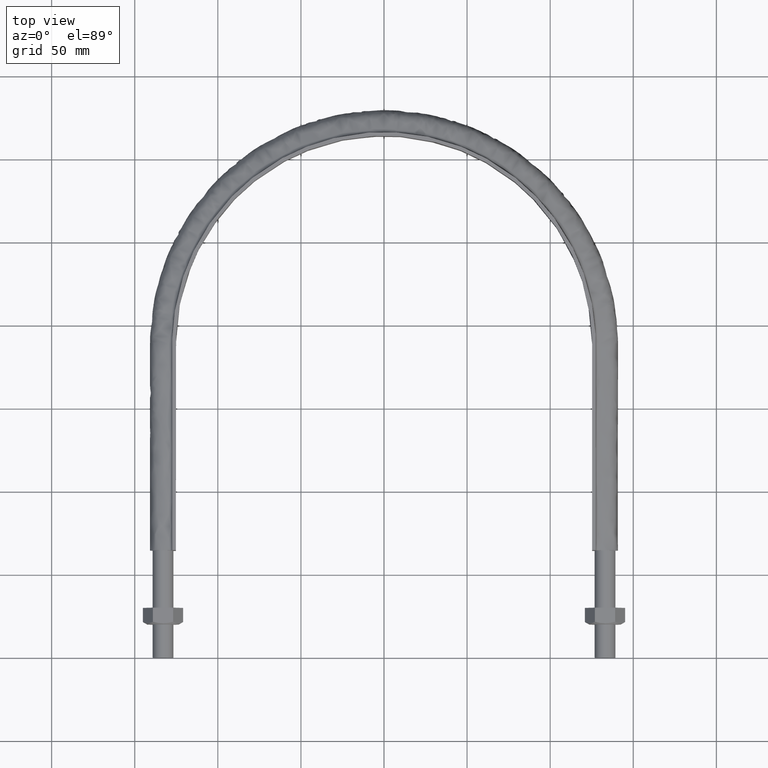
[diagram: clean part render]
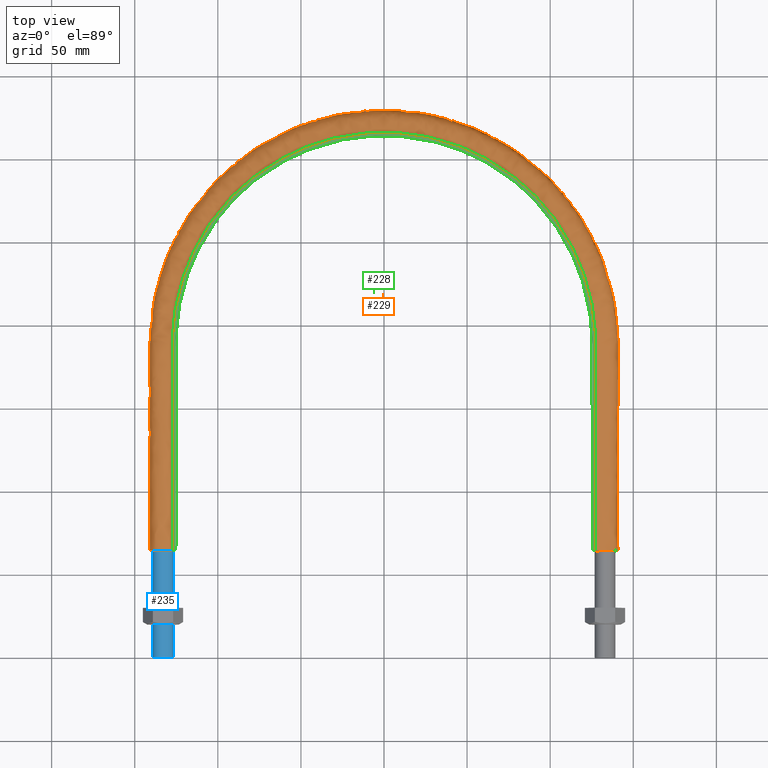
[diagram: same view with three faces highlighted in distinct colors, each labeled with its STEP entity id]
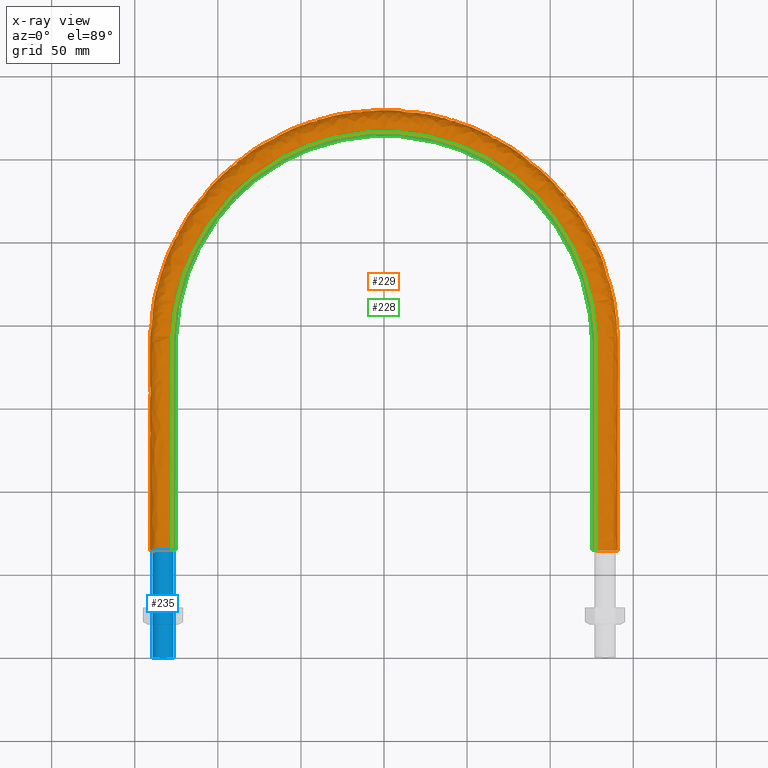
[diagram: x-ray of the same camera — body ghosted, the three highlighted faces saturated]
A machine part, top view with three faces highlighted in distinct colors.
The next image is the same camera in x-ray (body ghosted, the three faces saturated) — at least one of them is partly hidden behind the body in this view.
Their STEP definitions:

[orange] entity #229 — the highlighted face is a freeform B-spline surface patch.
#229 = ADVANCED_FACE( '', ( #289 ), #290, .F. );
#289 = FACE_OUTER_BOUND( '', #584, .T. );
#290 = B_SPLINE_SURFACE_WITH_KNOTS( '', 3, 3, ( ( #585, #586, #587, #588, #589, #590, #591, #592, #593, #594, #595, #596, #597, #598, #599, #600, #601 ), ( #602, #603, #604, #605, #606, #607, #608, #609, #610, #611, #612, #613, #614, #615, #616, #617, #618 ), ( #619, #620, #621, #622, #623, #624, #625, #626, #627, #628, #629, #630, #631, #632, #633, #634, #635 ), ( #636, #637, #638, #639, #640, #641, #642, #643, #644, #645, #646, #647, #648, #649, #650, #651, #652 ), ( #653, #654, #655, #656, #657, #658, #659, #660, #661, #662, #663, #664, #665, #666, #667, #668, #669 ), ( #670, #671, #672, #673, #674, #675, #676, #677, #678, #679, #680, #681, #682, #683, #684, #685, #686 ), ( #687, #688, #689, #690, #691, #692, #693, #694, #695, #696, #697, #698, #699, #700, #701, #702, #703 ), ( #704, #705, #706, #707, #708, #709, #710, #711, #712, #713, #714, #715, #716, #717, #718, #719, #720 ), ( #721, #722, #723, #724, #725, #726, #727, #728, #729, #730, #731, #732, #733, #734, #735, #736, #737 ), ( #738, #739, #740, #741, #742, #743, #744, #745, #746, #747, #748, #749, #750, #751, #752, #753, #754 ), ( #755, #756, #757, #758, #759, #760, #761, #762, #763, #764, #765, #766, #767, #768, #769, #770, #771 ), ( #772, #773, #774, #775, #776, #777, #778, #779, #780, #781, #782, #783, #784, #785, #786, #787, #788 ), ( #789, #790, #791, #792, #793, #794, #795, #796, #797, #798, #799, #800, #801, #802, #803, #804, #805 ), ( #806, #807, #808, #809, #810, #811, #812, #813, #814, #815, #816, #817, #818, #819, #820, #821, #822 ), ( #823, #824, #825, #826, #827, #828, #829, #830, #831, #832, #833, #834, #835, #836, #837, #838, #839 ), ( #840, #841, #842, #843, #844, #845, #846, #847, #848, #849, #850, #851, #852, #853, #854, #855, #856 ), ( #857, #858, #859, #860, #861, #862, #863, #864, #865, #866, #867, #868, #869, #870, #871, #872, #873 ), ( #874, #875, #876, #877, #878, #879, #880, #881, #882, #883, #884, #885, #886, #887, #888, #889, #890 ), ( #891, #892, #893, #894, #895, #896, #897, #898, #899, #900, #901, #902, #903, #904, #905, #906, #907 ), ( #908, #909, #910, #911, #912, #913, #914, #915, #916, #917, #918, #919, #920, #921, #922, #923, #924 ), ( #925, #926, #927, #928, #929, #930, #931, #932, #933, #934, #935, #936, #937, #938, #939, #940, #941 ), ( #942, #943, #944, #945, #946, #947, #948, #949, #950, #951, #952, #953, #954, #955, #956, #957, #958 ), ( #959, #960, #961, #962, #963, #964, #965, #966, #967, #968, #969, #970, #971, #972, #973, #974, #975 ), ( #976, #977, #978, #979, #980, #981, #982, #983, #984, #985, #986, #987, #988, #989, #990, #991, #992 ), ( #993, #994, #995, #996, #997, #998, #999, #1000, #1001, #1002, #1003, #1004, #1005, #1006, #1007, #1008, #1009 ), ( #1010, #1011, #1012, #1013, #1014, #1015, #1016, #1017, #1018, #1019, #1020, #1021, #1022, #1023, #1024, #1025, #1026 ), ( #1027, #1028, #1029, #1030, #1031, #1032, #1033, #1034, #1035, #1036, #1037, #1038, #1039, #1040, #1041, #1042, #1043 ), ( #1044, #1045, #1046, #1047, #1048, #1049, #1050, #1051, #1052, #1053, #1054, #1055, #1056, #1057, #1058, #1059, #1060 ), ( #1061, #1062, #1063, #1064, #1065, #1066, #1067, #1068, #1069, #1070, #1071, #1072, #1073, #1074, #1075, #1076, #1077 ), ( #1078, #1079, #1080, #1081, #1082, #1083, #1084, #1085, #1086, #1087, #1088, #1089, #1090, #1091, #1092, #1093, #1094 ), ( #1095, #1096, #1097, #1098, #1099, #1100, #1101, #1102, #1103, #1104, #1105, #1106, #1107, #1108, #1109, #1110, #1111 ) ), .UNSPECIFIED., .F., .F., .F., ( 4, 3, 1, 1, 1, 3, 3, 1, 1, 1, 3, 3, 1, 1, 1, 3, 4 ), ( 4, 3, 1, 1, 1, 1, 1, 1, 1, 3, 4 ), ( 0.105263157894737, 0.157894736842105, 0.210526315789474, 0.263157894736842, 0.315789473684211, 0.368421052631579, 0.421052631578947, 0.473684210526316, 0.526315789473684, 0.578947368421053, 0.631578947368421, 0.684210526315789, 0.736842105263158, 0.789473684210526, 0.842105263157895, 0.894736842105263, 0.947368421052632 ), ( 0.000000000000000, 1.00000000000000, 2.00000000000000, 3.00000000000000, 4.00000000000000, 5.00000000000000, 6.00000000000000, 7.00000000000000, 8.00000000000000, 9.00000000000000, 10.0000000000000 ), .UNSPECIFIED. );
#584 = EDGE_LOOP( '', ( #1451, #1452, #1453, #1454 ) );
#585 = CARTESIAN_POINT( '', ( 127.450000000000, 64.5000000000000, -15.0000000000000 ) );
#586 = CARTESIAN_POINT( '', ( 127.450000000000, 105.916666666667, -15.0000000000000 ) );
#587 = CARTESIAN_POINT( '', ( 127.450000000000, 147.333333333333, -15.0000000000000 ) );
#588 = CARTESIAN_POINT( '', ( 127.450000000000, 188.750000000000, -15.0000000000000 ) );
#589 = CARTESIAN_POINT( '', ( 127.450000000000, 205.421340766093, -15.0000000000000 ) );
#590 = CARTESIAN_POINT( '', ( 120.813917033132, 238.797210917867, -15.0000000000000 ) );
#591 = CARTESIAN_POINT( '', ( 92.4669688954201, 281.215771367909, -15.0000000000000 ) );
#592 = CARTESIAN_POINT( '', ( 50.0427629585410, 309.564259183849, -15.0000000000000 ) );
#593 = CARTESIAN_POINT( '', ( 9.63742361333870E-014, 319.517870408075, -15.0000000000000 ) );
#594 = CARTESIAN_POINT( '', ( -50.0427629585410, 309.564259183849, -15.0000000000000 ) );
#595 = CARTESIAN_POINT( '', ( -92.4669688954201, 281.215771367909, -15.0000000000000 ) );
#596 = CARTESIAN_POINT( '', ( -120.813917033132, 238.797210917867, -15.0000000000000 ) );
#597 = CARTESIAN_POINT( '', ( -127.450000000000, 205.421340766093, -15.0000000000000 ) );
#598 = CARTESIAN_POINT( '', ( -127.450000000000, 188.750000000000, -15.0000000000000 ) );
#599 = CARTESIAN_POINT( '', ( -127.450000000000, 147.333333333333, -15.0000000000000 ) );
#600 = CARTESIAN_POINT( '', ( -127.450000000000, 105.916666666667, -15.0000000000000 ) );
#601 = CARTESIAN_POINT( '', ( -127.450000000000, 64.5000000000001, -15.0000000000000 ) );
#602 = CARTESIAN_POINT( '', ( 127.450000000000, 64.5000000000000, -13.2666666666667 ) );
#603 = CARTESIAN_POINT( '', ( 127.450000000000, 105.916666666667, -13.2666666666667 ) );
#604 = CARTESIAN_POINT( '', ( 127.450000000000, 147.333333333333, -13.2666666666667 ) );
#605 = CARTESIAN_POINT( '', ( 127.450000000000, 188.750000000000, -13.2666666666667 ) );
#606 = CARTESIAN_POINT( '', ( 127.450000000000, 205.421340766093, -13.2666666666667 ) );
#607 = CARTESIAN_POINT( '', ( 120.813917033132, 238.797210917867, -13.2666666666667 ) );
#608 = CARTESIAN_POINT( '', ( 92.4669688954201, 281.215771367909, -13.2666666666667 ) );
#609 = CARTESIAN_POINT( '', ( 50.0427629585410, 309.564259183849, -13.2666666666667 ) );
#610 = CARTESIAN_POINT( '', ( 9.63742361333870E-014, 319.517870408075, -13.2666666666667 ) );
#611 = CARTESIAN_POINT( '', ( -50.0427629585410, 309.564259183849, -13.2666666666667 ) );
#612 = CARTESIAN_POINT( '', ( -92.4669688954201, 281.215771367909, -13.2666666666667 ) );
#613 = CARTESIAN_POINT( '', ( -120.813917033132, 238.797210917867, -13.2666666666667 ) );
#614 = CARTESIAN_POINT( '', ( -127.450000000000, 205.421340766093, -13.2666666666667 ) );
#615 = CARTESIAN_POINT( '', ( -127.450000000000, 188.750000000000, -13.2666666666667 ) );
#616 = CARTESIAN_POINT( '', ( -127.450000000000, 147.333333333333, -13.2666666666667 ) );
#617 = CARTESIAN_POINT( '', ( -127.450000000000, 105.916666666667, -13.2666666666667 ) );
#618 = CARTESIAN_POINT( '', ( -127.450000000000, 64.5000000000001, -13.2666666666667 ) );
#619 = CARTESIAN_POINT( '', ( 127.450000000000, 64.5000000000000, -11.5333333333333 ) );
#620 = CARTESIAN_POINT( '', ( 127.450000000000, 105.916666666667, -11.5333333333333 ) );
#621 = CARTESIAN_POINT( '', ( 127.450000000000, 147.333333333333, -11.5333333333333 ) );
#622 = CARTESIAN_POINT( '', ( 127.450000000000, 188.750000000000, -11.5333333333333 ) );
#623 = CARTESIAN_POINT( '', ( 127.450000000000, 205.421340766093, -11.5333333333333 ) );
#624 = CARTESIAN_POINT( '', ( 120.813917033132, 238.797210917867, -11.5333333333333 ) );
#625 = CARTESIAN_POINT( '', ( 92.4669688954201, 281.215771367909, -11.5333333333333 ) );
#626 = CARTESIAN_POINT( '', ( 50.0427629585411, 309.564259183849, -11.5333333333333 ) );
#627 = CARTESIAN_POINT( '', ( 9.63742361333870E-014, 319.517870408075, -11.5333333333333 ) );
#628 = CARTESIAN_POINT( '', ( -50.0427629585410, 309.564259183849, -11.5333333333333 ) );
#629 = CARTESIAN_POINT( '', ( -92.4669688954201, 281.215771367909, -11.5333333333333 ) );
#630 = CARTESIAN_POINT( '', ( -120.813917033132, 238.797210917867, -11.5333333333333 ) );
#631 = CARTESIAN_POINT( '', ( -127.450000000000, 205.421340766093, -11.5333333333333 ) );
#632 = CARTESIAN_POINT( '', ( -127.450000000000, 188.750000000000, -11.5333333333333 ) );
#633 = CARTESIAN_POINT( '', ( -127.450000000000, 147.333333333333, -11.5333333333333 ) );
#634 = CARTESIAN_POINT( '', ( -127.450000000000, 105.916666666667, -11.5333333333333 ) );
#635 = CARTESIAN_POINT( '', ( -127.450000000000, 64.5000000000001, -11.5333333333333 ) );
#636 = CARTESIAN_POINT( '', ( 127.450000000000, 64.5000000000000, -9.79999999999998 ) );
#637 = CARTESIAN_POINT( '', ( 127.450000000000, 105.916666666667, -9.79999999999998 ) );
#638 = CARTESIAN_POINT( '', ( 127.450000000000, 147.333333333333, -9.79999999999998 ) );
#639 = CARTESIAN_POINT( '', ( 127.450000000000, 188.750000000000, -9.79999999999998 ) );
#640 = CARTESIAN_POINT( '', ( 127.450000000000, 205.421340766093, -9.79999999999999 ) );
#641 = CARTESIAN_POINT( '', ( 120.813917033132, 238.797210917867, -9.80000000000000 ) );
#642 = CARTESIAN_POINT( '', ( 92.4669688954201, 281.215771367909, -9.79999999999998 ) );
#643 = CARTESIAN_POINT( '', ( 50.0427629585411, 309.564259183849, -9.80000000000000 ) );
#644 = CARTESIAN_POINT( '', ( 9.81089596093639E-014, 319.517870408076, -9.79999999999999 ) );
#645 = CARTESIAN_POINT( '', ( -50.0427629585410, 309.564259183849, -9.79999999999998 ) );
#646 = CARTESIAN_POINT( '', ( -92.4669688954201, 281.215771367909, -9.79999999999999 ) );
#647 = CARTESIAN_POINT( '', ( -120.813917033132, 238.797210917867, -9.80000000000000 ) );
#648 = CARTESIAN_POINT( '', ( -127.450000000000, 205.421340766093, -9.79999999999998 ) );
#649 = CARTESIAN_POINT( '', ( -127.450000000000, 188.750000000000, -9.79999999999998 ) );
#650 = CARTESIAN_POINT( '', ( -127.450000000000, 147.333333333333, -9.79999999999998 ) );
#651 = CARTESIAN_POINT( '', ( -127.450000000000, 105.916666666667, -9.79999999999998 ) );
#652 = CARTESIAN_POINT( '', ( -127.450000000000, 64.5000000000001, -9.79999999999998 ) );
#653 = CARTESIAN_POINT( '', ( 127.450000000000, 64.5000000000000, -9.53823584172332 ) );
#654 = CARTESIAN_POINT( '', ( 127.450000000000, 105.916666666667, -9.53823584172332 ) );
#655 = CARTESIAN_POINT( '', ( 127.450000000000, 147.333333333333, -9.53823584172332 ) );
#656 = CARTESIAN_POINT( '', ( 127.450000000000, 188.750000000000, -9.53823584172332 ) );
#657 = CARTESIAN_POINT( '', ( 127.450000000000, 205.421340766093, -9.53823584172332 ) );
#658 = CARTESIAN_POINT( '', ( 120.813917033132, 238.797210917867, -9.53823584172333 ) );
#659 = CARTESIAN_POINT( '', ( 92.4669688954201, 281.215771367909, -9.53823584172332 ) );
#660 = CARTESIAN_POINT( '', ( 50.0427629585411, 309.564259183849, -9.53823584172333 ) );
#661 = CARTESIAN_POINT( '', ( 9.81089596093639E-014, 319.517870408075, -9.53823584172333 ) );
#662 = CARTESIAN_POINT( '', ( -50.0427629585410, 309.564259183849, -9.53823584172332 ) );
#663 = CARTESIAN_POINT( '', ( -92.4669688954201, 281.215771367909, -9.53823584172333 ) );
#664 = CARTESIAN_POINT( '', ( -120.813917033132, 238.797210917867, -9.53823584172333 ) );
#665 = CARTESIAN_POINT( '', ( -127.450000000000, 205.421340766093, -9.53823584172332 ) );
#666 = CARTESIAN_POINT( '', ( -127.450000000000, 188.750000000000, -9.53823584172332 ) );
#667 = CARTESIAN_POINT( '', ( -127.450000000000, 147.333333333333, -9.53823584172332 ) );
#668 = CARTESIAN_POINT( '', ( -127.450000000000, 105.916666666667, -9.53823584172332 ) );
#669 = CARTESIAN_POINT( '', ( -127.450000000000, 64.5000000000001, -9.53823584172332 ) );
#670 = CARTESIAN_POINT( '', ( 127.554136256836, 64.5000000000000, -9.01470752516999 ) );
#671 = CARTESIAN_POINT( '', ( 127.554136256836, 105.916666666667, -9.01470752516999 ) );
#672 = CARTESIAN_POINT( '', ( 127.554136256836, 147.333333333333, -9.01470752516999 ) );
#673 = CARTESIAN_POINT( '', ( 127.554136256836, 188.750000000000, -9.01470752516999 ) );
#674 = CARTESIAN_POINT( '', ( 127.554136256836, 205.435150092345, -9.01470752517000 ) );
#675 = CARTESIAN_POINT( '', ( 120.912631109974, 238.838016168944, -9.01470752517000 ) );
#676 = CARTESIAN_POINT( '', ( 92.5425213789174, 281.291346320962, -9.01470752516999 ) );
#677 = CARTESIAN_POINT( '', ( 50.0836516679662, 309.662966840818, -9.01470752517000 ) );
#678 = CARTESIAN_POINT( '', ( 9.98567680724136E-014, 319.624720964845, -9.01470752517000 ) );
#679 = CARTESIAN_POINT( '', ( -50.0836516679661, 309.662966840818, -9.01470752516999 ) );
#680 = CARTESIAN_POINT( '', ( -92.5425213789174, 281.291346320962, -9.01470752517000 ) );
#681 = CARTESIAN_POINT( '', ( -120.912631109974, 238.838016168944, -9.01470752517001 ) );
#682 = CARTESIAN_POINT( '', ( -127.554136256836, 205.435150092345, -9.01470752516999 ) );
#683 = CARTESIAN_POINT( '', ( -127.554136256836, 188.750000000000, -9.01470752516999 ) );
#684 = CARTESIAN_POINT( '', ( -127.554136256836, 147.333333333333, -9.01470752516999 ) );
#685 = CARTESIAN_POINT( '', ( -127.554136256836, 105.916666666667, -9.01470752516999 ) );
#686 = CARTESIAN_POINT( '', ( -127.554136256836, 64.5000000000001, -9.01470752516999 ) );
#687 = CARTESIAN_POINT( '', ( 127.998968710939, 64.5000000000000, -8.34896871093886 ) );
#688 = CARTESIAN_POINT( '', ( 127.998968710939, 105.916666666667, -8.34896871093886 ) );
#689 = CARTESIAN_POINT( '', ( 127.998968710939, 147.333333333333, -8.34896871093886 ) );
#690 = CARTESIAN_POINT( '', ( 127.998968710939, 188.750000000000, -8.34896871093886 ) );
#691 = CARTESIAN_POINT( '', ( 127.998968710939, 205.494138543367, -8.34896871093886 ) );
#692 = CARTESIAN_POINT( '', ( 121.334301970732, 239.012321454424, -8.34896871093887 ) );
#693 = CARTESIAN_POINT( '', ( 92.8652542835641, 281.614175207429, -8.34896871093886 ) );
#694 = CARTESIAN_POINT( '', ( 50.2583134573498, 310.084610278199, -8.34896871093887 ) );
#695 = CARTESIAN_POINT( '', ( 9.99126624082425E-014, 320.081147927309, -8.34896871093886 ) );
#696 = CARTESIAN_POINT( '', ( -50.2583134573497, 310.084610278199, -8.34896871093886 ) );
#697 = CARTESIAN_POINT( '', ( -92.8652542835640, 281.614175207429, -8.34896871093886 ) );
#698 = CARTESIAN_POINT( '', ( -121.334301970732, 239.012321454424, -8.34896871093887 ) );
#699 = CARTESIAN_POINT( '', ( -127.998968710939, 205.494138543367, -8.34896871093886 ) );
#700 = CARTESIAN_POINT( '', ( -127.998968710939, 188.750000000000, -8.34896871093886 ) );
#701 = CARTESIAN_POINT( '', ( -127.998968710939, 147.333333333333, -8.34896871093886 ) );
#702 = CARTESIAN_POINT( '', ( -127.998968710939, 105.916666666667, -8.34896871093886 ) );
#703 = CARTESIAN_POINT( '', ( -127.998968710939, 64.5000000000001, -8.34896871093886 ) );
#704 = CARTESIAN_POINT( '', ( 128.664707525170, 64.5000000000000, -7.90413625683589 ) );
#705 = CARTESIAN_POINT( '', ( 128.664707525170, 105.916666666667, -7.90413625683589 ) );
#706 = CARTESIAN_POINT( '', ( 128.664707525170, 147.333333333333, -7.90413625683589 ) );
#707 = CARTESIAN_POINT( '', ( 128.664707525170, 188.750000000000, -7.90413625683589 ) );
#708 = CARTESIAN_POINT( '', ( 128.664707525170, 205.582420999097, -7.90413625683590 ) );
#709 = CARTESIAN_POINT( '', ( 121.965377010891, 239.273187749137, -7.90413625683590 ) );
#710 = CARTESIAN_POINT( '', ( 93.3482582084600, 282.097322779270, -7.90413625683589 ) );
#711 = CARTESIAN_POINT( '', ( 50.5197132978587, 310.715644276374, -7.90413625683590 ) );
#712 = CARTESIAN_POINT( '', ( 9.82615907173676E-014, 320.764239149568, -7.90413625683590 ) );
#713 = CARTESIAN_POINT( '', ( -50.5197132978587, 310.715644276374, -7.90413625683589 ) );
#714 = CARTESIAN_POINT( '', ( -93.3482582084599, 282.097322779269, -7.90413625683590 ) );
#715 = CARTESIAN_POINT( '', ( -121.965377010891, 239.273187749137, -7.90413625683590 ) );
#716 = CARTESIAN_POINT( '', ( -128.664707525170, 205.582420999097, -7.90413625683589 ) );
#717 = CARTESIAN_POINT( '', ( -128.664707525170, 188.750000000000, -7.90413625683589 ) );
#718 = CARTESIAN_POINT( '', ( -128.664707525170, 147.333333333333, -7.90413625683589 ) );
#719 = CARTESIAN_POINT( '', ( -128.664707525170, 105.916666666667, -7.90413625683589 ) );
#720 = CARTESIAN_POINT( '', ( -128.664707525170, 64.5000000000001, -7.90413625683589 ) );
#721 = CARTESIAN_POINT( '', ( 129.188235841723, 64.5000000000000, -7.79999999999998 ) );
#722 = CARTESIAN_POINT( '', ( 129.188235841723, 105.916666666667, -7.79999999999998 ) );
#723 = CARTESIAN_POINT( '', ( 129.188235841723, 147.333333333333, -7.79999999999998 ) );
#724 = CARTESIAN_POINT( '', ( 129.188235841723, 188.750000000000, -7.79999999999998 ) );
#725 = CARTESIAN_POINT( '', ( 129.188235841723, 205.651845170321, -7.79999999999999 ) );
#726 = CARTESIAN_POINT( '', ( 122.461646187828, 239.478329599360, -7.79999999999999 ) );
#727 = CARTESIAN_POINT( '', ( 93.7280861924742, 282.477263725367, -7.79999999999998 ) );
#728 = CARTESIAN_POINT( '', ( 50.7252747215336, 311.211881178430, -7.79999999999999 ) );
#729 = CARTESIAN_POINT( '', ( 1.00062096865610E-013, 321.301413173370, -7.79999999999999 ) );
#730 = CARTESIAN_POINT( '', ( -50.7252747215336, 311.211881178430, -7.79999999999998 ) );
#731 = CARTESIAN_POINT( '', ( -93.7280861924741, 282.477263725367, -7.79999999999999 ) );
#732 = CARTESIAN_POINT( '', ( -122.461646187827, 239.478329599360, -7.79999999999999 ) );
#733 = CARTESIAN_POINT( '', ( -129.188235841723, 205.651845170321, -7.79999999999998 ) );
#734 = CARTESIAN_POINT( '', ( -129.188235841723, 188.750000000000, -7.79999999999998 ) );
#735 = CARTESIAN_POINT( '', ( -129.188235841723, 147.333333333333, -7.79999999999998 ) );
#736 = CARTESIAN_POINT( '', ( -129.188235841723, 105.916666666667, -7.79999999999998 ) );
#737 = CARTESIAN_POINT( '', ( -129.188235841723, 64.5000000000001, -7.79999999999998 ) );
#738 = CARTESIAN_POINT( '', ( 129.450000000000, 64.5000000000000, -7.79999999999998 ) );
#739 = CARTESIAN_POINT( '', ( 129.450000000000, 105.916666666667, -7.79999999999998 ) );
#740 = CARTESIAN_POINT( '', ( 129.450000000000, 147.333333333333, -7.79999999999998 ) );
#741 = CARTESIAN_POINT( '', ( 129.450000000000, 188.750000000000, -7.79999999999998 ) );
#742 = CARTESIAN_POINT( '', ( 129.450000000000, 205.686557255933, -7.79999999999999 ) );
#743 = CARTESIAN_POINT( '', ( 122.709780776296, 239.580900524471, -7.79999999999999 ) );
#744 = CARTESIAN_POINT( '', ( 93.9180001844813, 282.667234198416, -7.79999999999998 ) );
#745 = CARTESIAN_POINT( '', ( 50.8280554333711, 311.459999629457, -7.79999999999999 ) );
#746 = CARTESIAN_POINT( '', ( 9.48908177738125E-014, 321.570000185271, -7.79999999999999 ) );
#747 = CARTESIAN_POINT( '', ( -50.8280554333710, 311.459999629457, -7.79999999999998 ) );
#748 = CARTESIAN_POINT( '', ( -93.9180001844812, 282.667234198415, -7.79999999999999 ) );
#749 = CARTESIAN_POINT( '', ( -122.709780776296, 239.580900524471, -7.79999999999999 ) );
#750 = CARTESIAN_POINT( '', ( -129.450000000000, 205.686557255933, -7.79999999999998 ) );
#751 = CARTESIAN_POINT( '', ( -129.450000000000, 188.750000000000, -7.79999999999998 ) );
#752 = CARTESIAN_POINT( '', ( -129.450000000000, 147.333333333333, -7.79999999999998 ) );
#753 = CARTESIAN_POINT( '', ( -129.450000000000, 105.916666666667, -7.79999999999998 ) );
#754 = CARTESIAN_POINT( '', ( -129.450000000000, 64.5000000000001, -7.79999999999998 ) );
#755 = CARTESIAN_POINT( '', ( 130.633333333333, 64.5000000000000, -7.79999999999999 ) );
#756 = CARTESIAN_POINT( '', ( 130.633333333333, 105.916666666667, -7.79999999999999 ) );
#757 = CARTESIAN_POINT( '', ( 130.633333333333, 147.333333333333, -7.79999999999999 ) );
#758 = CARTESIAN_POINT( '', ( 130.633333333333, 188.750000000000, -7.79999999999999 ) );
#759 = CARTESIAN_POINT( '', ( 130.633333333333, 205.843477012421, -7.79999999999999 ) );
#760 = CARTESIAN_POINT( '', ( 123.831500157668, 240.044583541712, -7.80000000000000 ) );
#761 = CARTESIAN_POINT( '', ( 94.7765270305091, 283.526016373132, -7.79999999999999 ) );
#762 = CARTESIAN_POINT( '', ( 51.2926868143121, 312.581646059776, -7.80000000000000 ) );
#763 = CARTESIAN_POINT( '', ( 9.67742301103272E-014, 322.784176970112, -7.79999999999999 ) );
#764 = CARTESIAN_POINT( '', ( -51.2926868143121, 312.581646059776, -7.79999999999999 ) );
#765 = CARTESIAN_POINT( '', ( -94.7765270305090, 283.526016373132, -7.79999999999999 ) );
#766 = CARTESIAN_POINT( '', ( -123.831500157668, 240.044583541712, -7.80000000000000 ) );
#767 = CARTESIAN_POINT( '', ( -130.633333333333, 205.843477012421, -7.79999999999999 ) );
#768 = CARTESIAN_POINT( '', ( -130.633333333333, 188.750000000000, -7.79999999999999 ) );
#769 = CARTESIAN_POINT( '', ( -130.633333333333, 147.333333333333, -7.79999999999999 ) );
#770 = CARTESIAN_POINT( '', ( -130.633333333333, 105.916666666667, -7.79999999999999 ) );
#771 = CARTESIAN_POINT( '', ( -130.633333333333, 64.5000000000001, -7.79999999999999 ) );
#772 = CARTESIAN_POINT( '', ( 131.816666666667, 64.5000000000000, -7.79999999999999 ) );
#773 = CARTESIAN_POINT( '', ( 131.816666666667, 105.916666666667, -7.79999999999999 ) );
#774 = CARTESIAN_POINT( '', ( 131.816666666667, 147.333333333333, -7.79999999999999 ) );
#775 = CARTESIAN_POINT( '', ( 131.816666666667, 188.750000000000, -7.79999999999999 ) );
#776 = CARTESIAN_POINT( '', ( 131.816666666667, 206.000396768910, -7.79999999999999 ) );
#777 = CARTESIAN_POINT( '', ( 124.953219539040, 240.508266558953, -7.80000000000000 ) );
#778 = CARTESIAN_POINT( '', ( 95.6350538765369, 284.384798547848, -7.79999999999999 ) );
#779 = CARTESIAN_POINT( '', ( 51.7573181952532, 313.703292490094, -7.80000000000000 ) );
#780 = CARTESIAN_POINT( '', ( 8.99840250669580E-014, 323.998353754953, -7.79999999999999 ) );
#781 = CARTESIAN_POINT( '', ( -51.7573181952531, 313.703292490094, -7.79999999999999 ) );
#782 = CARTESIAN_POINT( '', ( -95.6350538765369, 284.384798547848, -7.79999999999999 ) );
#783 = CARTESIAN_POINT( '', ( -124.953219539040, 240.508266558953, -7.80000000000000 ) );
#784 = CARTESIAN_POINT( '', ( -131.816666666667, 206.000396768910, -7.79999999999999 ) );
#785 = CARTESIAN_POINT( '', ( -131.816666666667, 188.750000000000, -7.79999999999999 ) );
#786 = CARTESIAN_POINT( '', ( -131.816666666667, 147.333333333333, -7.79999999999999 ) );
#787 = CARTESIAN_POINT( '', ( -131.816666666667, 105.916666666667, -7.79999999999999 ) );
#788 = CARTESIAN_POINT( '', ( -131.816666666667, 64.5000000000001, -7.79999999999999 ) );
#789 = CARTESIAN_POINT( '', ( 133.000000000000, 64.5000000000000, -7.79999999999999 ) );
#790 = CARTESIAN_POINT( '', ( 133.000000000000, 105.916666666667, -7.79999999999999 ) );
#791 = CARTESIAN_POINT( '', ( 133.000000000000, 147.333333333333, -7.79999999999999 ) );
#792 = CARTESIAN_POINT( '', ( 133.000000000000, 188.750000000000, -7.79999999999999 ) );
#793 = CARTESIAN_POINT( '', ( 133.000000000000, 206.157316525398, -7.79999999999999 ) );
#794 = CARTESIAN_POINT( '', ( 126.074938920412, 240.971949576194, -7.80000000000000 ) );
#795 = CARTESIAN_POINT( '', ( 96.4935807225648, 285.243580722565, -7.79999999999999 ) );
#796 = CARTESIAN_POINT( '', ( 52.2219495761943, 314.824938920412, -7.80000000000000 ) );
#797 = CARTESIAN_POINT( '', ( 9.36021608794496E-014, 325.212530539794, -7.79999999999999 ) );
#798 = CARTESIAN_POINT( '', ( -52.2219495761942, 314.824938920412, -7.79999999999999 ) );
#799 = CARTESIAN_POINT( '', ( -96.4935807225647, 285.243580722565, -7.79999999999999 ) );
#800 = CARTESIAN_POINT( '', ( -126.074938920412, 240.971949576194, -7.80000000000000 ) );
#801 = CARTESIAN_POINT( '', ( -133.000000000000, 206.157316525398, -7.79999999999999 ) );
#802 = CARTESIAN_POINT( '', ( -133.000000000000, 188.750000000000, -7.79999999999999 ) );
#803 = CARTESIAN_POINT( '', ( -133.000000000000, 147.333333333333, -7.79999999999999 ) );
#804 = CARTESIAN_POINT( '', ( -133.000000000000, 105.916666666667, -7.79999999999999 ) );
#805 = CARTESIAN_POINT( '', ( -133.000000000000, 64.5000000000001, -7.79999999999999 ) );
#806 = CARTESIAN_POINT( '', ( 135.037390224717, 64.5000000000000, -7.80000000000000 ) );
#807 = CARTESIAN_POINT( '', ( 135.037390224717, 105.916666666667, -7.80000000000000 ) );
#808 = CARTESIAN_POINT( '', ( 135.037390224717, 147.333333333333, -7.80000000000000 ) );
#809 = CARTESIAN_POINT( '', ( 135.037390224717, 188.750000000000, -7.80000000000000 ) );
#810 = CARTESIAN_POINT( '', ( 135.037390224717, 206.427491267315, -7.80000000000000 ) );
#811 = CARTESIAN_POINT( '', ( 128.006246049271, 241.770290348048, -7.80000000000001 ) );
#812 = CARTESIAN_POINT( '', ( 97.9717392046107, 286.722178813772, -7.80000000000000 ) );
#813 = CARTESIAN_POINT( '', ( 53.0219231820756, 316.756120446654, -7.80000000000001 ) );
#814 = CARTESIAN_POINT( '', ( 8.86539937453088E-014, 327.303025113749, -7.80000000000000 ) );
#815 = CARTESIAN_POINT( '', ( -53.0219231820755, 316.756120446654, -7.80000000000000 ) );
#816 = CARTESIAN_POINT( '', ( -97.9717392046106, 286.722178813772, -7.80000000000000 ) );
#817 = CARTESIAN_POINT( '', ( -128.006246049271, 241.770290348048, -7.80000000000001 ) );
#818 = CARTESIAN_POINT( '', ( -135.037390224717, 206.427491267315, -7.80000000000000 ) );
#819 = CARTESIAN_POINT( '', ( -135.037390224717, 188.750000000000, -7.80000000000000 ) );
#820 = CARTESIAN_POINT( '', ( -135.037390224717, 147.333333333333, -7.80000000000000 ) );
#821 = CARTESIAN_POINT( '', ( -135.037390224717, 105.916666666667, -7.80000000000000 ) );
#822 = CARTESIAN_POINT( '', ( -135.037390224717, 64.5000000000001, -7.80000000000000 ) );
#823 = CARTESIAN_POINT( '', ( 139.112170674152, 64.5000000000000, -6.11217067415155 ) );
#824 = CARTESIAN_POINT( '', ( 139.112170674152, 105.916666666667, -6.11217067415155 ) );
#825 = CARTESIAN_POINT( '', ( 139.112170674152, 147.333333333333, -6.11217067415155 ) );
#826 = CARTESIAN_POINT( '', ( 139.112170674152, 188.750000000000, -6.11217067415155 ) );
#827 = CARTESIAN_POINT( '', ( 139.112170674152, 206.967840751147, -6.11217067415155 ) );
#828 = CARTESIAN_POINT( '', ( 131.868860306989, 243.366971891757, -6.11217067415156 ) );
#829 = CARTESIAN_POINT( '', ( 100.928056168703, 289.679374996186, -6.11217067415155 ) );
#830 = CARTESIAN_POINT( '', ( 54.6218703938381, 320.618483499137, -6.11217067415156 ) );
#831 = CARTESIAN_POINT( '', ( 8.22271064289809E-014, 331.484014261659, -6.11217067415155 ) );
#832 = CARTESIAN_POINT( '', ( -54.6218703938381, 320.618483499137, -6.11217067415155 ) );
#833 = CARTESIAN_POINT( '', ( -100.928056168703, 289.679374996186, -6.11217067415155 ) );
#834 = CARTESIAN_POINT( '', ( -131.868860306989, 243.366971891756, -6.11217067415156 ) );
#835 = CARTESIAN_POINT( '', ( -139.112170674151, 206.967840751147, -6.11217067415155 ) );
#836 = CARTESIAN_POINT( '', ( -139.112170674151, 188.750000000000, -6.11217067415155 ) );
#837 = CARTESIAN_POINT( '', ( -139.112170674151, 147.333333333333, -6.11217067415155 ) );
#838 = CARTESIAN_POINT( '', ( -139.112170674151, 105.916666666667, -6.11217067415155 ) );
#839 = CARTESIAN_POINT( '', ( -139.112170674152, 64.5000000000001, -6.11217067415155 ) );
#840 = CARTESIAN_POINT( '', ( 141.643914662924, 64.5000000000000, -2.58929722408951E-015 ) );
#841 = CARTESIAN_POINT( '', ( 141.643914662924, 105.916666666667, -2.58929722408951E-015 ) );
#842 = CARTESIAN_POINT( '', ( 141.643914662924, 147.333333333333, -2.58929722408951E-015 ) );
#843 = CARTESIAN_POINT( '', ( 141.643914662924, 188.750000000000, -2.58929722408951E-015 ) );
#844 = CARTESIAN_POINT( '', ( 141.643914662924, 207.303570878085, -2.58929722408951E-015 ) );
#845 = CARTESIAN_POINT( '', ( 134.268781124633, 244.359022617049, -2.58929722408952E-015 ) );
#846 = CARTESIAN_POINT( '', ( 102.764876040503, 291.516741144217, -2.58929722408951E-015 ) );
#847 = CARTESIAN_POINT( '', ( 55.6159501451278, 323.018248237858, -2.58929722408952E-015 ) );
#848 = CARTESIAN_POINT( '', ( 7.90757795859268E-014, 334.081747875457, -2.58929722408951E-015 ) );
#849 = CARTESIAN_POINT( '', ( -55.6159501451277, 323.018248237858, -2.58929722408951E-015 ) );
#850 = CARTESIAN_POINT( '', ( -102.764876040503, 291.516741144217, -2.58929722408951E-015 ) );
#851 = CARTESIAN_POINT( '', ( -134.268781124633, 244.359022617049, -2.58929722408952E-015 ) );
#852 = CARTESIAN_POINT( '', ( -141.643914662924, 207.303570878085, -2.58929722408951E-015 ) );
#853 = CARTESIAN_POINT( '', ( -141.643914662924, 188.750000000000, -2.58929722408951E-015 ) );
#854 = CARTESIAN_POINT( '', ( -141.643914662924, 147.333333333333, -2.58929722408951E-015 ) );
#855 = CARTESIAN_POINT( '', ( -141.643914662924, 105.916666666667, -2.58929722408951E-015 ) );
#856 = CARTESIAN_POINT( '', ( -141.643914662924, 64.5000000000001, -2.58929722408951E-015 ) );
#857 = CARTESIAN_POINT( '', ( 139.112170674152, 64.5000000000000, 6.11217067415155 ) );
#858 = CARTESIAN_POINT( '', ( 139.112170674152, 105.916666666667, 6.11217067415155 ) );
#859 = CARTESIAN_POINT( '', ( 139.112170674152, 147.333333333333, 6.11217067415155 ) );
#860 = CARTESIAN_POINT( '', ( 139.112170674152, 188.750000000000, 6.11217067415155 ) );
#861 = CARTESIAN_POINT( '', ( 139.112170674152, 206.967840751147, 6.11217067415155 ) );
#862 = CARTESIAN_POINT( '', ( 131.868860306989, 243.366971891757, 6.11217067415155 ) );
#863 = CARTESIAN_POINT( '', ( 100.928056168703, 289.679374996186, 6.11217067415155 ) );
#864 = CARTESIAN_POINT( '', ( 54.6218703938381, 320.618483499137, 6.11217067415155 ) );
#865 = CARTESIAN_POINT( '', ( 8.56965533809345E-014, 331.484014261659, 6.11217067415155 ) );
#866 = CARTESIAN_POINT( '', ( -54.6218703938381, 320.618483499137, 6.11217067415155 ) );
#867 = CARTESIAN_POINT( '', ( -100.928056168703, 289.679374996186, 6.11217067415155 ) );
#868 = CARTESIAN_POINT( '', ( -131.868860306989, 243.366971891756, 6.11217067415156 ) );
#869 = CARTESIAN_POINT( '', ( -139.112170674151, 206.967840751147, 6.11217067415155 ) );
#870 = CARTESIAN_POINT( '', ( -139.112170674151, 188.750000000000, 6.11217067415155 ) );
#871 = CARTESIAN_POINT( '', ( -139.112170674151, 147.333333333333, 6.11217067415155 ) );
#872 = CARTESIAN_POINT( '', ( -139.112170674151, 105.916666666667, 6.11217067415155 ) );
#873 = CARTESIAN_POINT( '', ( -139.112170674152, 64.5000000000001, 6.11217067415155 ) );
#874 = CARTESIAN_POINT( '', ( 135.037390224717, 64.5000000000000, 7.80000000000000 ) );
#875 = CARTESIAN_POINT( '', ( 135.037390224717, 105.916666666667, 7.80000000000000 ) );
#876 = CARTESIAN_POINT( '', ( 135.037390224717, 147.333333333333, 7.80000000000000 ) );
#877 = CARTESIAN_POINT( '', ( 135.037390224717, 188.750000000000, 7.80000000000000 ) );
#878 = CARTESIAN_POINT( '', ( 135.037390224717, 206.427491267315, 7.80000000000000 ) );
#879 = CARTESIAN_POINT( '', ( 128.006246049271, 241.770290348048, 7.80000000000001 ) );
#880 = CARTESIAN_POINT( '', ( 97.9717392046107, 286.722178813772, 7.80000000000000 ) );
#881 = CARTESIAN_POINT( '', ( 53.0219231820756, 316.756120446654, 7.80000000000001 ) );
#882 = CARTESIAN_POINT( '', ( 8.86539937453088E-014, 327.303025113749, 7.80000000000000 ) );
#883 = CARTESIAN_POINT( '', ( -53.0219231820755, 316.756120446654, 7.79999999999999 ) );
#884 = CARTESIAN_POINT( '', ( -97.9717392046106, 286.722178813772, 7.80000000000000 ) );
#885 = CARTESIAN_POINT( '', ( -128.006246049271, 241.770290348048, 7.80000000000001 ) );
#886 = CARTESIAN_POINT( '', ( -135.037390224717, 206.427491267315, 7.80000000000000 ) );
#887 = CARTESIAN_POINT( '', ( -135.037390224717, 188.750000000000, 7.80000000000000 ) );
#888 = CARTESIAN_POINT( '', ( -135.037390224717, 147.333333333333, 7.80000000000000 ) );
#889 = CARTESIAN_POINT( '', ( -135.037390224717, 105.916666666667, 7.80000000000000 ) );
#890 = CARTESIAN_POINT( '', ( -135.037390224717, 64.5000000000001, 7.80000000000000 ) );
#891 = CARTESIAN_POINT( '', ( 133.000000000000, 64.5000000000000, 7.80000000000000 ) );
#892 = CARTESIAN_POINT( '', ( 133.000000000000, 105.916666666667, 7.80000000000000 ) );
#893 = CARTESIAN_POINT( '', ( 133.000000000000, 147.333333333333, 7.80000000000000 ) );
#894 = CARTESIAN_POINT( '', ( 133.000000000000, 188.750000000000, 7.80000000000000 ) );
#895 = CARTESIAN_POINT( '', ( 133.000000000000, 206.157316525398, 7.80000000000000 ) );
#896 = CARTESIAN_POINT( '', ( 126.074938920412, 240.971949576194, 7.80000000000001 ) );
#897 = CARTESIAN_POINT( '', ( 96.4935807225648, 285.243580722565, 7.80000000000000 ) );
#898 = CARTESIAN_POINT( '', ( 52.2219495761943, 314.824938920412, 7.80000000000001 ) );
#899 = CARTESIAN_POINT( '', ( 8.83979904515192E-014, 325.212530539794, 7.80000000000000 ) );
#900 = CARTESIAN_POINT( '', ( -52.2219495761942, 314.824938920412, 7.79999999999999 ) );
#901 = CARTESIAN_POINT( '', ( -96.4935807225647, 285.243580722565, 7.80000000000000 ) );
#902 = CARTESIAN_POINT( '', ( -126.074938920412, 240.971949576194, 7.80000000000001 ) );
#903 = CARTESIAN_POINT( '', ( -133.000000000000, 206.157316525398, 7.80000000000000 ) );
#904 = CARTESIAN_POINT( '', ( -133.000000000000, 188.750000000000, 7.80000000000000 ) );
#905 = CARTESIAN_POINT( '', ( -133.000000000000, 147.333333333333, 7.80000000000000 ) );
#906 = CARTESIAN_POINT( '', ( -133.000000000000, 105.916666666667, 7.80000000000000 ) );
#907 = CARTESIAN_POINT( '', ( -133.000000000000, 64.5000000000001, 7.80000000000000 ) );
#908 = CARTESIAN_POINT( '', ( 131.816666666667, 64.5000000000000, 7.79999999999999 ) );
#909 = CARTESIAN_POINT( '', ( 131.816666666667, 105.916666666667, 7.79999999999999 ) );
#910 = CARTESIAN_POINT( '', ( 131.816666666667, 147.333333333333, 7.79999999999999 ) );
#911 = CARTESIAN_POINT( '', ( 131.816666666667, 188.750000000000, 7.79999999999999 ) );
#912 = CARTESIAN_POINT( '', ( 131.816666666667, 206.000396768910, 7.79999999999999 ) );
#913 = CARTESIAN_POINT( '', ( 124.953219539040, 240.508266558953, 7.80000000000000 ) );
#914 = CARTESIAN_POINT( '', ( 95.6350538765369, 284.384798547848, 7.79999999999999 ) );
#915 = CARTESIAN_POINT( '', ( 51.7573181952532, 313.703292490094, 7.80000000000000 ) );
#916 = CARTESIAN_POINT( '', ( 8.47798546390276E-014, 323.998353754953, 7.79999999999999 ) );
#917 = CARTESIAN_POINT( '', ( -51.7573181952531, 313.703292490094, 7.79999999999999 ) );
#918 = CARTESIAN_POINT( '', ( -95.6350538765369, 284.384798547848, 7.79999999999999 ) );
#919 = CARTESIAN_POINT( '', ( -124.953219539040, 240.508266558953, 7.80000000000000 ) );
#920 = CARTESIAN_POINT( '', ( -131.816666666667, 206.000396768910, 7.79999999999999 ) );
#921 = CARTESIAN_POINT( '', ( -131.816666666667, 188.750000000000, 7.79999999999999 ) );
#922 = CARTESIAN_POINT( '', ( -131.816666666667, 147.333333333333, 7.79999999999999 ) );
#923 = CARTESIAN_POINT( '', ( -131.816666666667, 105.916666666667, 7.79999999999999 ) );
#924 = CARTESIAN_POINT( '', ( -131.816666666667, 64.5000000000001, 7.79999999999999 ) );
#925 = CARTESIAN_POINT( '', ( 130.633333333333, 64.5000000000000, 7.79999999999999 ) );
#926 = CARTESIAN_POINT( '', ( 130.633333333333, 105.916666666667, 7.79999999999999 ) );
#927 = CARTESIAN_POINT( '', ( 130.633333333333, 147.333333333333, 7.79999999999999 ) );
#928 = CARTESIAN_POINT( '', ( 130.633333333333, 188.750000000000, 7.79999999999999 ) );
#929 = CARTESIAN_POINT( '', ( 130.633333333333, 205.843477012421, 7.79999999999999 ) );
#930 = CARTESIAN_POINT( '', ( 123.831500157668, 240.044583541712, 7.80000000000000 ) );
#931 = CARTESIAN_POINT( '', ( 94.7765270305091, 283.526016373132, 7.79999999999999 ) );
#932 = CARTESIAN_POINT( '', ( 51.2926868143121, 312.581646059776, 7.80000000000000 ) );
#933 = CARTESIAN_POINT( '', ( 8.28964423025128E-014, 322.784176970112, 7.79999999999999 ) );
#934 = CARTESIAN_POINT( '', ( -51.2926868143121, 312.581646059776, 7.79999999999999 ) );
#935 = CARTESIAN_POINT( '', ( -94.7765270305091, 283.526016373132, 7.79999999999999 ) );
#936 = CARTESIAN_POINT( '', ( -123.831500157668, 240.044583541712, 7.80000000000000 ) );
#937 = CARTESIAN_POINT( '', ( -130.633333333333, 205.843477012421, 7.79999999999999 ) );
#938 = CARTESIAN_POINT( '', ( -130.633333333333, 188.750000000000, 7.79999999999999 ) );
#939 = CARTESIAN_POINT( '', ( -130.633333333333, 147.333333333333, 7.79999999999999 ) );
#940 = CARTESIAN_POINT( '', ( -130.633333333333, 105.916666666667, 7.79999999999999 ) );
#941 = CARTESIAN_POINT( '', ( -130.633333333333, 64.5000000000001, 7.79999999999999 ) );
#942 = CARTESIAN_POINT( '', ( 129.450000000000, 64.5000000000000, 7.79999999999999 ) );
#943 = CARTESIAN_POINT( '', ( 129.450000000000, 105.916666666667, 7.79999999999999 ) );
#944 = CARTESIAN_POINT( '', ( 129.450000000000, 147.333333333333, 7.79999999999999 ) );
#945 = CARTESIAN_POINT( '', ( 129.450000000000, 188.750000000000, 7.79999999999999 ) );
#946 = CARTESIAN_POINT( '', ( 129.450000000000, 205.686557255933, 7.79999999999999 ) );
#947 = CARTESIAN_POINT( '', ( 122.709780776296, 239.580900524471, 7.80000000000000 ) );
#948 = CARTESIAN_POINT( '', ( 93.9180001844812, 282.667234198416, 7.79999999999999 ) );
#949 = CARTESIAN_POINT( '', ( 50.8280554333710, 311.459999629457, 7.80000000000000 ) );
#950 = CARTESIAN_POINT( '', ( 8.62172003939284E-014, 321.570000185271, 7.79999999999999 ) );
#951 = CARTESIAN_POINT( '', ( -50.8280554333710, 311.459999629457, 7.79999999999999 ) );
#952 = CARTESIAN_POINT( '', ( -93.9180001844812, 282.667234198415, 7.79999999999999 ) );
#953 = CARTESIAN_POINT( '', ( -122.709780776296, 239.580900524471, 7.80000000000000 ) );
#954 = CARTESIAN_POINT( '', ( -129.450000000000, 205.686557255933, 7.79999999999999 ) );
#955 = CARTESIAN_POINT( '', ( -129.450000000000, 188.750000000000, 7.79999999999999 ) );
#956 = CARTESIAN_POINT( '', ( -129.450000000000, 147.333333333333, 7.79999999999999 ) );
#957 = CARTESIAN_POINT( '', ( -129.450000000000, 105.916666666667, 7.79999999999999 ) );
#958 = CARTESIAN_POINT( '', ( -129.450000000000, 64.5000000000001, 7.79999999999999 ) );
#959 = CARTESIAN_POINT( '', ( 129.188235841723, 64.5000000000000, 7.79999999999999 ) );
#960 = CARTESIAN_POINT( '', ( 129.188235841723, 105.916666666667, 7.79999999999999 ) );
#961 = CARTESIAN_POINT( '', ( 129.188235841723, 147.333333333333, 7.79999999999999 ) );
#962 = CARTESIAN_POINT( '', ( 129.188235841723, 188.750000000000, 7.79999999999999 ) );
#963 = CARTESIAN_POINT( '', ( 129.188235841723, 205.651845170321, 7.79999999999999 ) );
#964 = CARTESIAN_POINT( '', ( 122.461646187828, 239.478329599360, 7.80000000000000 ) );
#965 = CARTESIAN_POINT( '', ( 93.7280861924742, 282.477263725367, 7.79999999999999 ) );
#966 = CARTESIAN_POINT( '', ( 50.7252747215336, 311.211881178430, 7.80000000000000 ) );
#967 = CARTESIAN_POINT( '', ( 8.96537560097492E-014, 321.301413173370, 7.79999999999999 ) );
#968 = CARTESIAN_POINT( '', ( -50.7252747215336, 311.211881178430, 7.79999999999999 ) );
#969 = CARTESIAN_POINT( '', ( -93.7280861924741, 282.477263725367, 7.80000000000000 ) );
#970 = CARTESIAN_POINT( '', ( -122.461646187827, 239.478329599360, 7.80000000000000 ) );
#971 = CARTESIAN_POINT( '', ( -129.188235841723, 205.651845170321, 7.79999999999999 ) );
#972 = CARTESIAN_POINT( '', ( -129.188235841723, 188.750000000000, 7.79999999999999 ) );
#973 = CARTESIAN_POINT( '', ( -129.188235841723, 147.333333333333, 7.79999999999999 ) );
#974 = CARTESIAN_POINT( '', ( -129.188235841723, 105.916666666667, 7.79999999999999 ) );
#975 = CARTESIAN_POINT( '', ( -129.188235841723, 64.5000000000001, 7.79999999999999 ) );
#976 = CARTESIAN_POINT( '', ( 128.664707525170, 64.5000000000000, 7.90413625683590 ) );
#977 = CARTESIAN_POINT( '', ( 128.664707525170, 105.916666666667, 7.90413625683590 ) );
#978 = CARTESIAN_POINT( '', ( 128.664707525170, 147.333333333333, 7.90413625683590 ) );
#979 = CARTESIAN_POINT( '', ( 128.664707525170, 188.750000000000, 7.90413625683590 ) );
#980 = CARTESIAN_POINT( '', ( 128.664707525170, 205.582420999097, 7.90413625683590 ) );
#981 = CARTESIAN_POINT( '', ( 121.965377010891, 239.273187749137, 7.90413625683591 ) );
#982 = CARTESIAN_POINT( '', ( 93.3482582084600, 282.097322779269, 7.90413625683590 ) );
#983 = CARTESIAN_POINT( '', ( 50.5197132978587, 310.715644276374, 7.90413625683591 ) );
#984 = CARTESIAN_POINT( '', ( 9.13226968134604E-014, 320.764239149568, 7.90413625683590 ) );
#985 = CARTESIAN_POINT( '', ( -50.5197132978587, 310.715644276374, 7.90413625683590 ) );
#986 = CARTESIAN_POINT( '', ( -93.3482582084599, 282.097322779269, 7.90413625683590 ) );
#987 = CARTESIAN_POINT( '', ( -121.965377010891, 239.273187749137, 7.90413625683591 ) );
#988 = CARTESIAN_POINT( '', ( -128.664707525170, 205.582420999097, 7.90413625683590 ) );
#989 = CARTESIAN_POINT( '', ( -128.664707525170, 188.750000000000, 7.90413625683590 ) );
#990 = CARTESIAN_POINT( '', ( -128.664707525170, 147.333333333333, 7.90413625683590 ) );
#991 = CARTESIAN_POINT( '', ( -128.664707525170, 105.916666666667, 7.90413625683590 ) );
#992 = CARTESIAN_POINT( '', ( -128.664707525170, 64.5000000000001, 7.90413625683590 ) );
#993 = CARTESIAN_POINT( '', ( 127.998968710939, 64.5000000000000, 8.34896871093887 ) );
#994 = CARTESIAN_POINT( '', ( 127.998968710939, 105.916666666667, 8.34896871093887 ) );
#995 = CARTESIAN_POINT( '', ( 127.998968710939, 147.333333333333, 8.34896871093887 ) );
#996 = CARTESIAN_POINT( '', ( 127.998968710939, 188.750000000000, 8.34896871093887 ) );
#997 = CARTESIAN_POINT( '', ( 127.998968710939, 205.494138543367, 8.34896871093887 ) );
#998 = CARTESIAN_POINT( '', ( 121.334301970732, 239.012321454424, 8.34896871093888 ) );
#999 = CARTESIAN_POINT( '', ( 92.8652542835640, 281.614175207429, 8.34896871093887 ) );
#1000 = CARTESIAN_POINT( '', ( 50.2583134573498, 310.084610278199, 8.34896871093888 ) );
#1001 = CARTESIAN_POINT( '', ( 9.29737685043353E-014, 320.081147927309, 8.34896871093887 ) );
#1002 = CARTESIAN_POINT( '', ( -50.2583134573497, 310.084610278199, 8.34896871093887 ) );
#1003 = CARTESIAN_POINT( '', ( -92.8652542835640, 281.614175207429, 8.34896871093887 ) );
#1004 = CARTESIAN_POINT( '', ( -121.334301970732, 239.012321454424, 8.34896871093888 ) );
#1005 = CARTESIAN_POINT( '', ( -127.998968710939, 205.494138543367, 8.34896871093887 ) );
#1006 = CARTESIAN_POINT( '', ( -127.998968710939, 188.750000000000, 8.34896871093887 ) );
#1007 = CARTESIAN_POINT( '', ( -127.998968710939, 147.333333333333, 8.34896871093887 ) );
#1008 = CARTESIAN_POINT( '', ( -127.998968710939, 105.916666666667, 8.34896871093887 ) );
#1009 = CARTESIAN_POINT( '', ( -127.998968710939, 64.5000000000001, 8.34896871093887 ) );
#1010 = CARTESIAN_POINT( '', ( 127.554136256836, 64.5000000000000, 9.01470752517000 ) );
#1011 = CARTESIAN_POINT( '', ( 127.554136256836, 105.916666666667, 9.01470752517000 ) );
#1012 = CARTESIAN_POINT( '', ( 127.554136256836, 147.333333333333, 9.01470752517000 ) );
#1013 = CARTESIAN_POINT( '', ( 127.554136256836, 188.750000000000, 9.01470752517000 ) );
#1014 = CARTESIAN_POINT( '', ( 127.554136256836, 205.435150092345, 9.01470752517000 ) );
#1015 = CARTESIAN_POINT( '', ( 120.912631109974, 238.838016168944, 9.01470752517001 ) );
#1016 = CARTESIAN_POINT( '', ( 92.5425213789174, 281.291346320962, 9.01470752517000 ) );
#1017 = CARTESIAN_POINT( '', ( 50.0836516679661, 309.662966840818, 9.01470752517001 ) );
#1018 = CARTESIAN_POINT( '', ( 9.29178741685064E-014, 319.624720964845, 9.01470752517000 ) );
#1019 = CARTESIAN_POINT( '', ( -50.0836516679661, 309.662966840818, 9.01470752517000 ) );
#1020 = CARTESIAN_POINT( '', ( -92.5425213789174, 281.291346320962, 9.01470752517000 ) );
#1021 = CARTESIAN_POINT( '', ( -120.912631109974, 238.838016168944, 9.01470752517001 ) );
#1022 = CARTESIAN_POINT( '', ( -127.554136256836, 205.435150092345, 9.01470752517000 ) );
#1023 = CARTESIAN_POINT( '', ( -127.554136256836, 188.750000000000, 9.01470752517000 ) );
#1024 = CARTESIAN_POINT( '', ( -127.554136256836, 147.333333333333, 9.01470752517000 ) );
#1025 = CARTESIAN_POINT( '', ( -127.554136256836, 105.916666666667, 9.01470752517000 ) );
#1026 = CARTESIAN_POINT( '', ( -127.554136256836, 64.5000000000001, 9.01470752517000 ) );
#1027 = CARTESIAN_POINT( '', ( 127.450000000000, 64.5000000000000, 9.53823584172333 ) );
#1028 = CARTESIAN_POINT( '', ( 127.450000000000, 105.916666666667, 9.53823584172333 ) );
#1029 = CARTESIAN_POINT( '', ( 127.450000000000, 147.333333333333, 9.53823584172333 ) );
#1030 = CARTESIAN_POINT( '', ( 127.450000000000, 188.750000000000, 9.53823584172333 ) );
#1031 = CARTESIAN_POINT( '', ( 127.450000000000, 205.421340766093, 9.53823584172333 ) );
#1032 = CARTESIAN_POINT( '', ( 120.813917033132, 238.797210917867, 9.53823584172334 ) );
#1033 = CARTESIAN_POINT( '', ( 92.4669688954201, 281.215771367909, 9.53823584172333 ) );
#1034 = CARTESIAN_POINT( '', ( 50.0427629585410, 309.564259183849, 9.53823584172334 ) );
#1035 = CARTESIAN_POINT( '', ( 9.46395126574102E-014, 319.517870408075, 9.53823584172333 ) );
#1036 = CARTESIAN_POINT( '', ( -50.0427629585410, 309.564259183849, 9.53823584172332 ) );
#1037 = CARTESIAN_POINT( '', ( -92.4669688954201, 281.215771367909, 9.53823584172333 ) );
#1038 = CARTESIAN_POINT( '', ( -120.813917033132, 238.797210917867, 9.53823584172334 ) );
#1039 = CARTESIAN_POINT( '', ( -127.450000000000, 205.421340766093, 9.53823584172333 ) );
#1040 = CARTESIAN_POINT( '', ( -127.450000000000, 188.750000000000, 9.53823584172333 ) );
#1041 = CARTESIAN_POINT( '', ( -127.450000000000, 147.333333333333, 9.53823584172333 ) );
#1042 = CARTESIAN_POINT( '', ( -127.450000000000, 105.916666666667, 9.53823584172333 ) );
#1043 = CARTESIAN_POINT( '', ( -127.450000000000, 64.5000000000001, 9.53823584172333 ) );
#1044 = CARTESIAN_POINT( '', ( 127.450000000000, 64.5000000000000, 9.79999999999999 ) );
#1045 = CARTESIAN_POINT( '', ( 127.450000000000, 105.916666666667, 9.79999999999999 ) );
#1046 = CARTESIAN_POINT( '', ( 127.450000000000, 147.333333333333, 9.79999999999999 ) );
#1047 = CARTESIAN_POINT( '', ( 127.450000000000, 188.750000000000, 9.79999999999999 ) );
#1048 = CARTESIAN_POINT( '', ( 127.450000000000, 205.421340766093, 9.79999999999999 ) );
#1049 = CARTESIAN_POINT( '', ( 120.813917033132, 238.797210917867, 9.80000000000000 ) );
#1050 = CARTESIAN_POINT( '', ( 92.4669688954201, 281.215771367909, 9.79999999999999 ) );
#1051 = CARTESIAN_POINT( '', ( 50.0427629585410, 309.564259183849, 9.80000000000000 ) );
#1052 = CARTESIAN_POINT( '', ( 9.46395126574102E-014, 319.517870408075, 9.79999999999999 ) );
#1053 = CARTESIAN_POINT( '', ( -50.0427629585410, 309.564259183849, 9.79999999999999 ) );
#1054 = CARTESIAN_POINT( '', ( -92.4669688954201, 281.215771367909, 9.79999999999999 ) );
#1055 = CARTESIAN_POINT( '', ( -120.813917033132, 238.797210917867, 9.80000000000000 ) );
#1056 = CARTESIAN_POINT( '', ( -127.450000000000, 205.421340766093, 9.79999999999999 ) );
#1057 = CARTESIAN_POINT( '', ( -127.450000000000, 188.750000000000, 9.79999999999999 ) );
#1058 = CARTESIAN_POINT( '', ( -127.450000000000, 147.333333333333, 9.79999999999999 ) );
#1059 = CARTESIAN_POINT( '', ( -127.450000000000, 105.916666666667, 9.79999999999999 ) );
#1060 = CARTESIAN_POINT( '', ( -127.450000000000, 64.5000000000001, 9.79999999999999 ) );
#1061 = CARTESIAN_POINT( '', ( 127.450000000000, 64.5000000000000, 11.5333333333333 ) );
#1062 = CARTESIAN_POINT( '', ( 127.450000000000, 105.916666666667, 11.5333333333333 ) );
#1063 = CARTESIAN_POINT( '', ( 127.450000000000, 147.333333333333, 11.5333333333333 ) );
#1064 = CARTESIAN_POINT( '', ( 127.450000000000, 188.750000000000, 11.5333333333333 ) );
#1065 = CARTESIAN_POINT( '', ( 127.450000000000, 205.421340766093, 11.5333333333333 ) );
#1066 = CARTESIAN_POINT( '', ( 120.813917033132, 238.797210917867, 11.5333333333333 ) );
#1067 = CARTESIAN_POINT( '', ( 92.4669688954201, 281.215771367909, 11.5333333333333 ) );
#1068 = CARTESIAN_POINT( '', ( 50.0427629585411, 309.564259183849, 11.5333333333333 ) );
#1069 = CARTESIAN_POINT( '', ( 9.11700657054566E-014, 319.517870408075, 11.5333333333333 ) );
#1070 = CARTESIAN_POINT( '', ( -50.0427629585410, 309.564259183849, 11.5333333333333 ) );
#1071 = CARTESIAN_POINT( '', ( -92.4669688954201, 281.215771367909, 11.5333333333333 ) );
#1072 = CARTESIAN_POINT( '', ( -120.813917033132, 238.797210917867, 11.5333333333333 ) );
#1073 = CARTESIAN_POINT( '', ( -127.450000000000, 205.421340766093, 11.5333333333333 ) );
#1074 = CARTESIAN_POINT( '', ( -127.450000000000, 188.750000000000, 11.5333333333333 ) );
#1075 = CARTESIAN_POINT( '', ( -127.450000000000, 147.333333333333, 11.5333333333333 ) );
#1076 = CARTESIAN_POINT( '', ( -127.450000000000, 105.916666666667, 11.5333333333333 ) );
#1077 = CARTESIAN_POINT( '', ( -127.450000000000, 64.5000000000001, 11.5333333333333 ) );
#1078 = CARTESIAN_POINT( '', ( 127.450000000000, 64.5000000000000, 13.2666666666666 ) );
#1079 = CARTESIAN_POINT( '', ( 127.450000000000, 105.916666666667, 13.2666666666666 ) );
#1080 = CARTESIAN_POINT( '', ( 127.450000000000, 147.333333333333, 13.2666666666666 ) );
#1081 = CARTESIAN_POINT( '', ( 127.450000000000, 188.750000000000, 13.2666666666666 ) );
#1082 = CARTESIAN_POINT( '', ( 127.450000000000, 205.421340766093, 13.2666666666666 ) );
#1083 = CARTESIAN_POINT( '', ( 120.813917033132, 238.797210917867, 13.2666666666667 ) );
#1084 = CARTESIAN_POINT( '', ( 92.4669688954201, 281.215771367909, 13.2666666666666 ) );
#1085 = CARTESIAN_POINT( '', ( 50.0427629585411, 309.564259183849, 13.2666666666667 ) );
#1086 = CARTESIAN_POINT( '', ( 9.11700657054566E-014, 319.517870408075, 13.2666666666666 ) );
#1087 = CARTESIAN_POINT( '', ( -50.0427629585410, 309.564259183849, 13.2666666666666 ) );
#1088 = CARTESIAN_POINT( '', ( -92.4669688954201, 281.215771367909, 13.2666666666666 ) );
#1089 = CARTESIAN_POINT( '', ( -120.813917033132, 238.797210917867, 13.2666666666667 ) );
#1090 = CARTESIAN_POINT( '', ( -127.450000000000, 205.421340766093, 13.2666666666666 ) );
#1091 = CARTESIAN_POINT( '', ( -127.450000000000, 188.750000000000, 13.2666666666666 ) );
#1092 = CARTESIAN_POINT( '', ( -127.450000000000, 147.333333333333, 13.2666666666666 ) );
#1093 = CARTESIAN_POINT( '', ( -127.450000000000, 105.916666666667, 13.2666666666666 ) );
#1094 = CARTESIAN_POINT( '', ( -127.450000000000, 64.5000000000001, 13.2666666666666 ) );
#1095 = CARTESIAN_POINT( '', ( 127.450000000000, 64.5000000000000, 15.0000000000000 ) );
#1096 = CARTESIAN_POINT( '', ( 127.450000000000, 105.916666666667, 15.0000000000000 ) );
#1097 = CARTESIAN_POINT( '', ( 127.450000000000, 147.333333333333, 15.0000000000000 ) );
#1098 = CARTESIAN_POINT( '', ( 127.450000000000, 188.750000000000, 15.0000000000000 ) );
#1099 = CARTESIAN_POINT( '', ( 127.450000000000, 205.421340766093, 15.0000000000000 ) );
#1100 = CARTESIAN_POINT( '', ( 120.813917033132, 238.797210917867, 15.0000000000000 ) );
#1101 = CARTESIAN_POINT( '', ( 92.4669688954201, 281.215771367909, 15.0000000000000 ) );
#1102 = CARTESIAN_POINT( '', ( 50.0427629585411, 309.564259183849, 15.0000000000000 ) );
#1103 = CARTESIAN_POINT( '', ( 8.77006187535030E-014, 319.517870408075, 15.0000000000000 ) );
#1104 = CARTESIAN_POINT( '', ( -50.0427629585410, 309.564259183849, 15.0000000000000 ) );
#1105 = CARTESIAN_POINT( '', ( -92.4669688954201, 281.215771367909, 15.0000000000000 ) );
#1106 = CARTESIAN_POINT( '', ( -120.813917033132, 238.797210917867, 15.0000000000000 ) );
#1107 = CARTESIAN_POINT( '', ( -127.450000000000, 205.421340766093, 15.0000000000000 ) );
#1108 = CARTESIAN_POINT( '', ( -127.450000000000, 188.750000000000, 15.0000000000000 ) );
#1109 = CARTESIAN_POINT( '', ( -127.450000000000, 147.333333333333, 15.0000000000000 ) );
#1110 = CARTESIAN_POINT( '', ( -127.450000000000, 105.916666666667, 15.0000000000000 ) );
#1111 = CARTESIAN_POINT( '', ( -127.450000000000, 64.5000000000001, 15.0000000000000 ) );
#1451 = ORIENTED_EDGE( '', *, *, #1659, .F. );
#1452 = ORIENTED_EDGE( '', *, *, #1655, .T. );
#1453 = ORIENTED_EDGE( '', *, *, #1652, .F. );
#1454 = ORIENTED_EDGE( '', *, *, #1666, .T. );
#1652 = EDGE_CURVE( '', #1724, #1726, #1727, .F. );
#1655 = EDGE_CURVE( '', #1731, #1726, #1732, .T. );
#1659 = EDGE_CURVE( '', #1731, #1738, #1739, .T. );
#1666 = EDGE_CURVE( '', #1724, #1738, #1750, .F. );
#1724 = VERTEX_POINT( '', #1849 );
#1726 = VERTEX_POINT( '', #1852 );
#1727 = B_SPLINE_CURVE_WITH_KNOTS( '', 3, ( #1853, #1854, #1855, #1856, #1857, #1858, #1859, #1860, #1861, #1862, #1863, #1864, #1865, #1866, #1867, #1868, #1869, #1870, #1871, #1872, #1873, #1874, #1875, #1876, #1877, #1878, #1879, #1880, #1881, #1882, #1883 ), .UNSPECIFIED., .F., .F., ( 4, 3, 1, 1, 1, 3, 3, 1, 1, 1, 3, 3, 1, 1, 1, 3, 4 ), ( 0.105263157894737, 0.157894736842105, 0.210526315789474, 0.263157894736842, 0.315789473684211, 0.368421052631579, 0.421052631578947, 0.473684210526316, 0.526315789473684, 0.578947368421053, 0.631578947368421, 0.684210526315789, 0.736842105263158, 0.789473684210526, 0.842105263157895, 0.894736842105263, 0.947368421052632 ), .UNSPECIFIED. );
#1731 = VERTEX_POINT( '', #1904 );
#1732 = B_SPLINE_CURVE_WITH_KNOTS( '', 3, ( #1905, #1906, #1907, #1908, #1909, #1910, #1911, #1912, #1913, #1914, #1915, #1916, #1917, #1918, #1919, #1920, #1921 ), .UNSPECIFIED., .F., .F., ( 4, 3, 1, 1, 1, 1, 1, 1, 1, 3, 4 ), ( 0.000000000000000, 1.00000000000000, 2.00000000000000, 3.00000000000000, 4.00000000000000, 5.00000000000000, 6.00000000000000, 7.00000000000000, 8.00000000000000, 9.00000000000000, 10.0000000000000 ), .UNSPECIFIED. );
#1738 = VERTEX_POINT( '', #1929 );
#1739 = B_SPLINE_CURVE_WITH_KNOTS( '', 3, ( #1930, #1931, #1932, #1933, #1934, #1935, #1936, #1937, #1938, #1939, #1940, #1941, #1942, #1943, #1944, #1945, #1946, #1947, #1948, #1949, #1950, #1951, #1952, #1953, #1954, #1955, #1956, #1957, #1958, #1959, #1960 ), .UNSPECIFIED., .F., .F., ( 4, 3, 1, 1, 1, 3, 3, 1, 1, 1, 3, 3, 1, 1, 1, 3, 4 ), ( 0.105263157894737, 0.157894736842105, 0.210526315789474, 0.263157894736842, 0.315789473684211, 0.368421052631579, 0.421052631578947, 0.473684210526316, 0.526315789473684, 0.578947368421053, 0.631578947368421, 0.684210526315789, 0.736842105263158, 0.789473684210526, 0.842105263157895, 0.894736842105263, 0.947368421052632 ), .UNSPECIFIED. );
#1750 = B_SPLINE_CURVE_WITH_KNOTS( '', 3, ( #2008, #2009, #2010, #2011, #2012, #2013, #2014, #2015, #2016, #2017, #2018, #2019, #2020, #2021, #2022, #2023, #2024 ), .UNSPECIFIED., .F., .F., ( 4, 3, 1, 1, 1, 1, 1, 1, 1, 3, 4 ), ( 0.000000000000000, 1.00000000000000, 2.00000000000000, 3.00000000000000, 4.00000000000000, 5.00000000000000, 6.00000000000000, 7.00000000000000, 8.00000000000000, 9.00000000000000, 10.0000000000000 ), .UNSPECIFIED. );
#1849 = CARTESIAN_POINT( '', ( -127.450000000000, 64.5000000000003, 15.0000000000000 ) );
#1852 = CARTESIAN_POINT( '', ( -127.450000000000, 64.5000000000003, -15.0000000000000 ) );
#1853 = CARTESIAN_POINT( '', ( -127.450000000000, 64.5000000000001, -15.0000000000000 ) );
#1854 = CARTESIAN_POINT( '', ( -127.450000000000, 64.5000000000001, -13.2666666666667 ) );
#1855 = CARTESIAN_POINT( '', ( -127.450000000000, 64.5000000000001, -11.5333333333333 ) );
#1856 = CARTESIAN_POINT( '', ( -127.450000000000, 64.5000000000001, -9.79999999999998 ) );
#1857 = CARTESIAN_POINT( '', ( -127.450000000000, 64.5000000000001, -9.53823584172332 ) );
#1858 = CARTESIAN_POINT( '', ( -127.554136256836, 64.5000000000001, -9.01470752516999 ) );
#1859 = CARTESIAN_POINT( '', ( -127.998968710939, 64.5000000000001, -8.34896871093886 ) );
#1860 = CARTESIAN_POINT( '', ( -128.664707525170, 64.5000000000001, -7.90413625683589 ) );
#1861 = CARTESIAN_POINT( '', ( -129.188235841723, 64.5000000000001, -7.79999999999998 ) );
#1862 = CARTESIAN_POINT( '', ( -129.450000000000, 64.5000000000001, -7.79999999999998 ) );
#1863 = CARTESIAN_POINT( '', ( -130.633333333333, 64.5000000000001, -7.79999999999999 ) );
#1864 = CARTESIAN_POINT( '', ( -131.816666666667, 64.5000000000001, -7.79999999999999 ) );
#1865 = CARTESIAN_POINT( '', ( -133.000000000000, 64.5000000000001, -7.79999999999999 ) );
#1866 = CARTESIAN_POINT( '', ( -135.037390224717, 64.5000000000001, -7.80000000000000 ) );
#1867 = CARTESIAN_POINT( '', ( -139.112170674152, 64.5000000000001, -6.11217067415155 ) );
#1868 = CARTESIAN_POINT( '', ( -141.643914662924, 64.5000000000001, -2.58929722408951E-015 ) );
#1869 = CARTESIAN_POINT( '', ( -139.112170674152, 64.5000000000001, 6.11217067415155 ) );
#1870 = CARTESIAN_POINT( '', ( -135.037390224717, 64.5000000000001, 7.80000000000000 ) );
#1871 = CARTESIAN_POINT( '', ( -133.000000000000, 64.5000000000001, 7.80000000000000 ) );
#1872 = CARTESIAN_POINT( '', ( -131.816666666667, 64.5000000000001, 7.79999999999999 ) );
#1873 = CARTESIAN_POINT( '', ( -130.633333333333, 64.5000000000001, 7.79999999999999 ) );
#1874 = CARTESIAN_POINT( '', ( -129.450000000000, 64.5000000000001, 7.79999999999999 ) );
#1875 = CARTESIAN_POINT( '', ( -129.188235841723, 64.5000000000001, 7.79999999999999 ) );
#1876 = CARTESIAN_POINT( '', ( -128.664707525170, 64.5000000000001, 7.90413625683590 ) );
#1877 = CARTESIAN_POINT( '', ( -127.998968710939, 64.5000000000001, 8.34896871093887 ) );
#1878 = CARTESIAN_POINT( '', ( -127.554136256836, 64.5000000000001, 9.01470752517000 ) );
#1879 = CARTESIAN_POINT( '', ( -127.450000000000, 64.5000000000001, 9.53823584172333 ) );
#1880 = CARTESIAN_POINT( '', ( -127.450000000000, 64.5000000000001, 9.79999999999999 ) );
#1881 = CARTESIAN_POINT( '', ( -127.450000000000, 64.5000000000001, 11.5333333333333 ) );
#1882 = CARTESIAN_POINT( '', ( -127.450000000000, 64.5000000000001, 13.2666666666666 ) );
#1883 = CARTESIAN_POINT( '', ( -127.450000000000, 64.5000000000001, 15.0000000000000 ) );
#1904 = CARTESIAN_POINT( '', ( 127.450000000000, 64.5000000000003, -15.0000000000000 ) );
#1905 = CARTESIAN_POINT( '', ( 127.450000000000, 64.5000000000000, -15.0000000000000 ) );
#1906 = CARTESIAN_POINT( '', ( 127.450000000000, 105.916666666667, -15.0000000000000 ) );
#1907 = CARTESIAN_POINT( '', ( 127.450000000000, 147.333333333333, -15.0000000000000 ) );
#1908 = CARTESIAN_POINT( '', ( 127.450000000000, 188.750000000000, -15.0000000000000 ) );
#1909 = CARTESIAN_POINT( '', ( 127.450000000000, 205.421340766093, -15.0000000000000 ) );
#1910 = CARTESIAN_POINT( '', ( 120.813917033132, 238.797210917867, -15.0000000000000 ) );
#1911 = CARTESIAN_POINT( '', ( 92.4669688954201, 281.215771367909, -15.0000000000000 ) );
#1912 = CARTESIAN_POINT( '', ( 50.0427629585410, 309.564259183849, -15.0000000000000 ) );
#1913 = CARTESIAN_POINT( '', ( 9.63742361333870E-014, 319.517870408075, -15.0000000000000 ) );
#1914 = CARTESIAN_POINT( '', ( -50.0427629585410, 309.564259183849, -15.0000000000000 ) );
#1915 = CARTESIAN_POINT( '', ( -92.4669688954201, 281.215771367909, -15.0000000000000 ) );
#1916 = CARTESIAN_POINT( '', ( -120.813917033132, 238.797210917867, -15.0000000000000 ) );
#1917 = CARTESIAN_POINT( '', ( -127.450000000000, 205.421340766093, -15.0000000000000 ) );
#1918 = CARTESIAN_POINT( '', ( -127.450000000000, 188.750000000000, -15.0000000000000 ) );
#1919 = CARTESIAN_POINT( '', ( -127.450000000000, 147.333333333333, -15.0000000000000 ) );
#1920 = CARTESIAN_POINT( '', ( -127.450000000000, 105.916666666667, -15.0000000000000 ) );
#1921 = CARTESIAN_POINT( '', ( -127.450000000000, 64.5000000000001, -15.0000000000000 ) );
#1929 = CARTESIAN_POINT( '', ( 127.450000000000, 64.5000000000003, 15.0000000000000 ) );
#1930 = CARTESIAN_POINT( '', ( 127.450000000000, 64.5000000000000, -15.0000000000000 ) );
#1931 = CARTESIAN_POINT( '', ( 127.450000000000, 64.5000000000000, -13.2666666666667 ) );
#1932 = CARTESIAN_POINT( '', ( 127.450000000000, 64.5000000000000, -11.5333333333333 ) );
#1933 = CARTESIAN_POINT( '', ( 127.450000000000, 64.5000000000000, -9.79999999999998 ) );
#1934 = CARTESIAN_POINT( '', ( 127.450000000000, 64.5000000000000, -9.53823584172332 ) );
#1935 = CARTESIAN_POINT( '', ( 127.554136256836, 64.5000000000000, -9.01470752516999 ) );
#1936 = CARTESIAN_POINT( '', ( 127.998968710939, 64.5000000000000, -8.34896871093886 ) );
#1937 = CARTESIAN_POINT( '', ( 128.664707525170, 64.5000000000000, -7.90413625683589 ) );
#1938 = CARTESIAN_POINT( '', ( 129.188235841723, 64.5000000000000, -7.79999999999998 ) );
#1939 = CARTESIAN_POINT( '', ( 129.450000000000, 64.5000000000000, -7.79999999999998 ) );
#1940 = CARTESIAN_POINT( '', ( 130.633333333333, 64.5000000000000, -7.79999999999999 ) );
#1941 = CARTESIAN_POINT( '', ( 131.816666666667, 64.5000000000000, -7.79999999999999 ) );
#1942 = CARTESIAN_POINT( '', ( 133.000000000000, 64.5000000000000, -7.79999999999999 ) );
#1943 = CARTESIAN_POINT( '', ( 135.037390224717, 64.5000000000000, -7.80000000000000 ) );
#1944 = CARTESIAN_POINT( '', ( 139.112170674152, 64.5000000000000, -6.11217067415155 ) );
#1945 = CARTESIAN_POINT( '', ( 141.643914662924, 64.5000000000000, -2.58929722408951E-015 ) );
#1946 = CARTESIAN_POINT( '', ( 139.112170674152, 64.5000000000000, 6.11217067415155 ) );
#1947 = CARTESIAN_POINT( '', ( 135.037390224717, 64.5000000000000, 7.80000000000000 ) );
#1948 = CARTESIAN_POINT( '', ( 133.000000000000, 64.5000000000000, 7.80000000000000 ) );
#1949 = CARTESIAN_POINT( '', ( 131.816666666667, 64.5000000000000, 7.79999999999999 ) );
#1950 = CARTESIAN_POINT( '', ( 130.633333333333, 64.5000000000000, 7.79999999999999 ) );
#1951 = CARTESIAN_POINT( '', ( 129.450000000000, 64.5000000000000, 7.79999999999999 ) );
#1952 = CARTESIAN_POINT( '', ( 129.188235841723, 64.5000000000000, 7.79999999999999 ) );
#1953 = CARTESIAN_POINT( '', ( 128.664707525170, 64.5000000000000, 7.90413625683590 ) );
#1954 = CARTESIAN_POINT( '', ( 127.998968710939, 64.5000000000000, 8.34896871093887 ) );
#1955 = CARTESIAN_POINT( '', ( 127.554136256836, 64.5000000000000, 9.01470752517000 ) );
#1956 = CARTESIAN_POINT( '', ( 127.450000000000, 64.5000000000000, 9.53823584172333 ) );
#1957 = CARTESIAN_POINT( '', ( 127.450000000000, 64.5000000000000, 9.79999999999999 ) );
#1958 = CARTESIAN_POINT( '', ( 127.450000000000, 64.5000000000000, 11.5333333333333 ) );
#1959 = CARTESIAN_POINT( '', ( 127.450000000000, 64.5000000000000, 13.2666666666666 ) );
#1960 = CARTESIAN_POINT( '', ( 127.450000000000, 64.5000000000000, 15.0000000000000 ) );
#2008 = CARTESIAN_POINT( '', ( 127.450000000000, 64.5000000000000, 15.0000000000000 ) );
#2009 = CARTESIAN_POINT( '', ( 127.450000000000, 105.916666666667, 15.0000000000000 ) );
#2010 = CARTESIAN_POINT( '', ( 127.450000000000, 147.333333333333, 15.0000000000000 ) );
#2011 = CARTESIAN_POINT( '', ( 127.450000000000, 188.750000000000, 15.0000000000000 ) );
#2012 = CARTESIAN_POINT( '', ( 127.450000000000, 205.421340766093, 15.0000000000000 ) );
#2013 = CARTESIAN_POINT( '', ( 120.813917033132, 238.797210917867, 15.0000000000000 ) );
#2014 = CARTESIAN_POINT( '', ( 92.4669688954201, 281.215771367909, 15.0000000000000 ) );
#2015 = CARTESIAN_POINT( '', ( 50.0427629585411, 309.564259183849, 15.0000000000000 ) );
#2016 = CARTESIAN_POINT( '', ( 8.77006187535030E-014, 319.517870408075, 15.0000000000000 ) );
#2017 = CARTESIAN_POINT( '', ( -50.0427629585410, 309.564259183849, 15.0000000000000 ) );
#2018 = CARTESIAN_POINT( '', ( -92.4669688954201, 281.215771367909, 15.0000000000000 ) );
#2019 = CARTESIAN_POINT( '', ( -120.813917033132, 238.797210917867, 15.0000000000000 ) );
#2020 = CARTESIAN_POINT( '', ( -127.450000000000, 205.421340766093, 15.0000000000000 ) );
#2021 = CARTESIAN_POINT( '', ( -127.450000000000, 188.750000000000, 15.0000000000000 ) );
#2022 = CARTESIAN_POINT( '', ( -127.450000000000, 147.333333333333, 15.0000000000000 ) );
#2023 = CARTESIAN_POINT( '', ( -127.450000000000, 105.916666666667, 15.0000000000000 ) );
#2024 = CARTESIAN_POINT( '', ( -127.450000000000, 64.5000000000001, 15.0000000000000 ) );

[blue] entity #235 — the highlighted cylindrical surface (bore or boss wall) has radius 6.25 mm, axis along (0, 1, 0).
#235 = ADVANCED_FACE( '', ( #304, #305 ), #306, .T. );
#304 = FACE_OUTER_BOUND( '', #1311, .T. );
#305 = FACE_OUTER_BOUND( '', #1312, .T. );
#306 = CYLINDRICAL_SURFACE( '', #1313, 6.25000000000001 );
#1311 = EDGE_LOOP( '', ( #1475 ) );
#1312 = EDGE_LOOP( '', ( #1476 ) );
#1313 = AXIS2_PLACEMENT_3D( '', #1477, #1478, #1479 );
#1475 = ORIENTED_EDGE( '', *, *, #1672, .T. );
#1476 = ORIENTED_EDGE( '', *, *, #1671, .F. );
#1477 = CARTESIAN_POINT( '', ( -133.000000000000, 65.0000000000000, 1.19399119497682E-014 ) );
#1478 = DIRECTION( '', ( 1.22460635382238E-016, 1.00000000000000, 1.83690953073357E-016 ) );
#1479 = DIRECTION( '', ( -1.00000000000000, 1.22460635382238E-016, 0.000000000000000 ) );
#1671 = EDGE_CURVE( '', #1759, #1759, #1760, .T. );
#1672 = EDGE_CURVE( '', #1761, #1761, #1762, .T. );
#1759 = VERTEX_POINT( '', #2053 );
#1760 = CIRCLE( '', #2054, 6.25000000000001 );
#1761 = VERTEX_POINT( '', #2055 );
#1762 = CIRCLE( '', #2056, 6.25000000000001 );
#2053 = CARTESIAN_POINT( '', ( -139.250000000000, 1.70526434769766E-014, 0.000000000000000 ) );
#2054 = AXIS2_PLACEMENT_3D( '', #2317, #2318, #2319 );
#2055 = CARTESIAN_POINT( '', ( -139.250000000000, 65.0000000000000, 1.19399119497682E-014 ) );
#2056 = AXIS2_PLACEMENT_3D( '', #2320, #2321, #2322 );
#2317 = CARTESIAN_POINT( '', ( -133.000000000000, 1.62872645058376E-014, 0.000000000000000 ) );
#2318 = DIRECTION( '', ( -1.22460635382238E-016, -1.00000000000000, -1.83690953073357E-016 ) );
#2319 = DIRECTION( '', ( -1.00000000000000, 1.22460635382238E-016, 0.000000000000000 ) );
#2320 = CARTESIAN_POINT( '', ( -133.000000000000, 65.0000000000000, 1.19399119497682E-014 ) );
#2321 = DIRECTION( '', ( -1.22460635382238E-016, -1.00000000000000, -1.83690953073357E-016 ) );
#2322 = DIRECTION( '', ( -1.00000000000000, 1.22460635382238E-016, 0.000000000000000 ) );

[green] entity #228 — the highlighted planar face has unit normal (0, 0, 1).
#228 = ADVANCED_FACE( '', ( #287 ), #288, .T. );
#287 = FACE_OUTER_BOUND( '', #582, .T. );
#288 = PLANE( '', #583 );
#582 = EDGE_LOOP( '', ( #1444, #1445, #1446, #1447 ) );
#583 = AXIS2_PLACEMENT_3D( '', #1448, #1449, #1450 );
#1444 = ORIENTED_EDGE( '', *, *, #1651, .T. );
#1445 = ORIENTED_EDGE( '', *, *, #1661, .T. );
#1446 = ORIENTED_EDGE( '', *, *, #1660, .T. );
#1447 = ORIENTED_EDGE( '', *, *, #1666, .F. );
#1448 = CARTESIAN_POINT( '', ( 150.000000000000, 364.500000000000, 15.0000000000000 ) );
#1449 = DIRECTION( '', ( 0.000000000000000, 0.000000000000000, 1.00000000000000 ) );
#1450 = DIRECTION( '', ( 1.22460635382238E-016, 1.00000000000000, 0.000000000000000 ) );
#1651 = EDGE_CURVE( '', #1724, #1722, #1725, .T. );
#1660 = EDGE_CURVE( '', #1736, #1738, #1740, .T. );
#1661 = EDGE_CURVE( '', #1722, #1736, #1741, .T. );
#1666 = EDGE_CURVE( '', #1724, #1738, #1750, .F. );
#1722 = VERTEX_POINT( '', #1846 );
#1724 = VERTEX_POINT( '', #1849 );
#1725 = LINE( '', #1850, #1851 );
#1736 = VERTEX_POINT( '', #1926 );
#1738 = VERTEX_POINT( '', #1929 );
#1740 = LINE( '', #1961, #1962 );
#1741 = B_SPLINE_CURVE_WITH_KNOTS( '', 3, ( #1963, #1964, #1965, #1966, #1967, #1968, #1969, #1970, #1971, #1972, #1973, #1974, #1975, #1976, #1977, #1978, #1979 ), .UNSPECIFIED., .F., .F., ( 4, 3, 1, 1, 1, 1, 1, 1, 1, 3, 4 ), ( -10.0000000000000, -9.00000000000000, -8.00000000000000, -7.00000000000000, -6.00000000000000, -5.00000000000000, -4.00000000000000, -3.00000000000000, -2.00000000000000, -1.00000000000000, 0.000000000000000 ), .UNSPECIFIED. );
#1750 = B_SPLINE_CURVE_WITH_KNOTS( '', 3, ( #2008, #2009, #2010, #2011, #2012, #2013, #2014, #2015, #2016, #2017, #2018, #2019, #2020, #2021, #2022, #2023, #2024 ), .UNSPECIFIED., .F., .F., ( 4, 3, 1, 1, 1, 1, 1, 1, 1, 3, 4 ), ( 0.000000000000000, 1.00000000000000, 2.00000000000000, 3.00000000000000, 4.00000000000000, 5.00000000000000, 6.00000000000000, 7.00000000000000, 8.00000000000000, 9.00000000000000, 10.0000000000000 ), .UNSPECIFIED. );
#1846 = CARTESIAN_POINT( '', ( -125.250000000000, 64.5000000000003, 15.0000000000000 ) );
#1849 = CARTESIAN_POINT( '', ( -127.450000000000, 64.5000000000003, 15.0000000000000 ) );
#1850 = CARTESIAN_POINT( '', ( -150.000000000000, 64.5000000000003, 15.0000000000000 ) );
#1851 = VECTOR( '', #2297, 1000.00000000000 );
#1926 = CARTESIAN_POINT( '', ( 125.250000000000, 64.5000000000003, 15.0000000000000 ) );
#1929 = CARTESIAN_POINT( '', ( 127.450000000000, 64.5000000000003, 15.0000000000000 ) );
#1961 = CARTESIAN_POINT( '', ( -150.000000000000, 64.5000000000003, 15.0000000000000 ) );
#1962 = VECTOR( '', #2304, 1000.00000000000 );
#1963 = CARTESIAN_POINT( '', ( -125.250000000000, 64.5000000000001, 14.9999999999998 ) );
#1964 = CARTESIAN_POINT( '', ( -125.250000000000, 105.916666666667, 14.9999999999998 ) );
#1965 = CARTESIAN_POINT( '', ( -125.250000000000, 147.333333333333, 14.9999999999998 ) );
#1966 = CARTESIAN_POINT( '', ( -125.250000000000, 188.750000000000, 14.9999999999998 ) );
#1967 = CARTESIAN_POINT( '', ( -125.250000000000, 205.129602627270, 14.9999999999998 ) );
#1968 = CARTESIAN_POINT( '', ( -118.728466915651, 237.935152350602, 14.9999999999998 ) );
#1969 = CARTESIAN_POINT( '', ( -90.8708344774529, 279.619162254352, 14.9999999999998 ) );
#1970 = CARTESIAN_POINT( '', ( -49.1789412362281, 307.478944693680, 14.9999999999998 ) );
#1971 = CARTESIAN_POINT( '', ( -4.44148010487768E-014, 317.260527653160, 14.9999999999998 ) );
#1972 = CARTESIAN_POINT( '', ( 49.1789412362279, 307.478944693680, 14.9999999999998 ) );
#1973 = CARTESIAN_POINT( '', ( 90.8708344774527, 279.619162254352, 14.9999999999998 ) );
#1974 = CARTESIAN_POINT( '', ( 118.728466915651, 237.935152350602, 14.9999999999998 ) );
#1975 = CARTESIAN_POINT( '', ( 125.250000000000, 205.129602627270, 14.9999999999998 ) );
#1976 = CARTESIAN_POINT( '', ( 125.250000000000, 188.750000000000, 14.9999999999998 ) );
#1977 = CARTESIAN_POINT( '', ( 125.250000000000, 147.333333333333, 14.9999999999998 ) );
#1978 = CARTESIAN_POINT( '', ( 125.250000000000, 105.916666666667, 14.9999999999998 ) );
#1979 = CARTESIAN_POINT( '', ( 125.250000000000, 64.5000000000000, 14.9999999999998 ) );
#2008 = CARTESIAN_POINT( '', ( 127.450000000000, 64.5000000000000, 15.0000000000000 ) );
#2009 = CARTESIAN_POINT( '', ( 127.450000000000, 105.916666666667, 15.0000000000000 ) );
#2010 = CARTESIAN_POINT( '', ( 127.450000000000, 147.333333333333, 15.0000000000000 ) );
#2011 = CARTESIAN_POINT( '', ( 127.450000000000, 188.750000000000, 15.0000000000000 ) );
#2012 = CARTESIAN_POINT( '', ( 127.450000000000, 205.421340766093, 15.0000000000000 ) );
#2013 = CARTESIAN_POINT( '', ( 120.813917033132, 238.797210917867, 15.0000000000000 ) );
#2014 = CARTESIAN_POINT( '', ( 92.4669688954201, 281.215771367909, 15.0000000000000 ) );
#2015 = CARTESIAN_POINT( '', ( 50.0427629585411, 309.564259183849, 15.0000000000000 ) );
#2016 = CARTESIAN_POINT( '', ( 8.77006187535030E-014, 319.517870408075, 15.0000000000000 ) );
#2017 = CARTESIAN_POINT( '', ( -50.0427629585410, 309.564259183849, 15.0000000000000 ) );
#2018 = CARTESIAN_POINT( '', ( -92.4669688954201, 281.215771367909, 15.0000000000000 ) );
#2019 = CARTESIAN_POINT( '', ( -120.813917033132, 238.797210917867, 15.0000000000000 ) );
#2020 = CARTESIAN_POINT( '', ( -127.450000000000, 205.421340766093, 15.0000000000000 ) );
#2021 = CARTESIAN_POINT( '', ( -127.450000000000, 188.750000000000, 15.0000000000000 ) );
#2022 = CARTESIAN_POINT( '', ( -127.450000000000, 147.333333333333, 15.0000000000000 ) );
#2023 = CARTESIAN_POINT( '', ( -127.450000000000, 105.916666666667, 15.0000000000000 ) );
#2024 = CARTESIAN_POINT( '', ( -127.450000000000, 64.5000000000001, 15.0000000000000 ) );
#2297 = DIRECTION( '', ( 1.00000000000000, -1.22460635382238E-016, 0.000000000000000 ) );
#2304 = DIRECTION( '', ( 1.00000000000000, -1.22460635382238E-016, 0.000000000000000 ) );